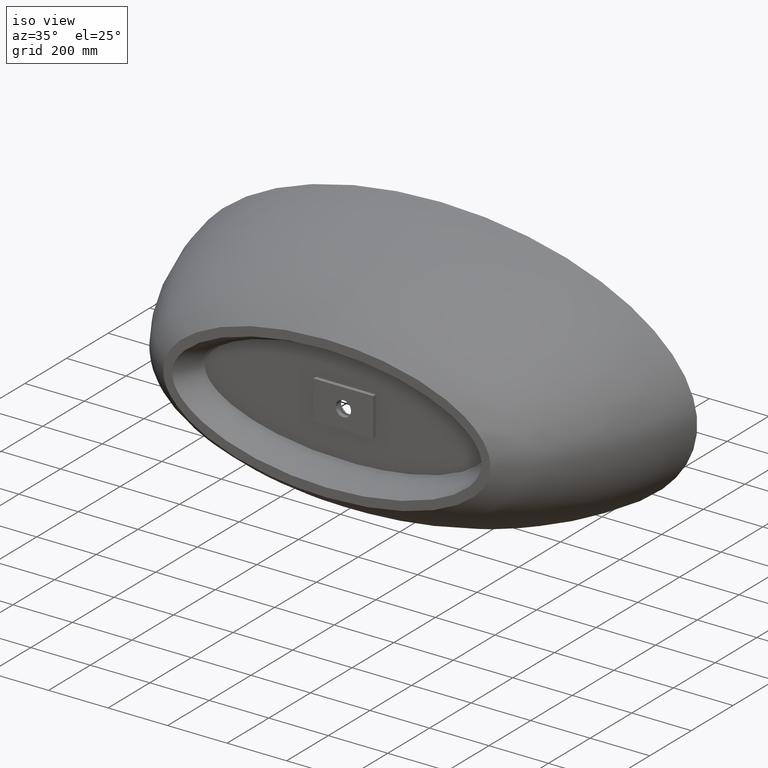
[diagram: clean part render]
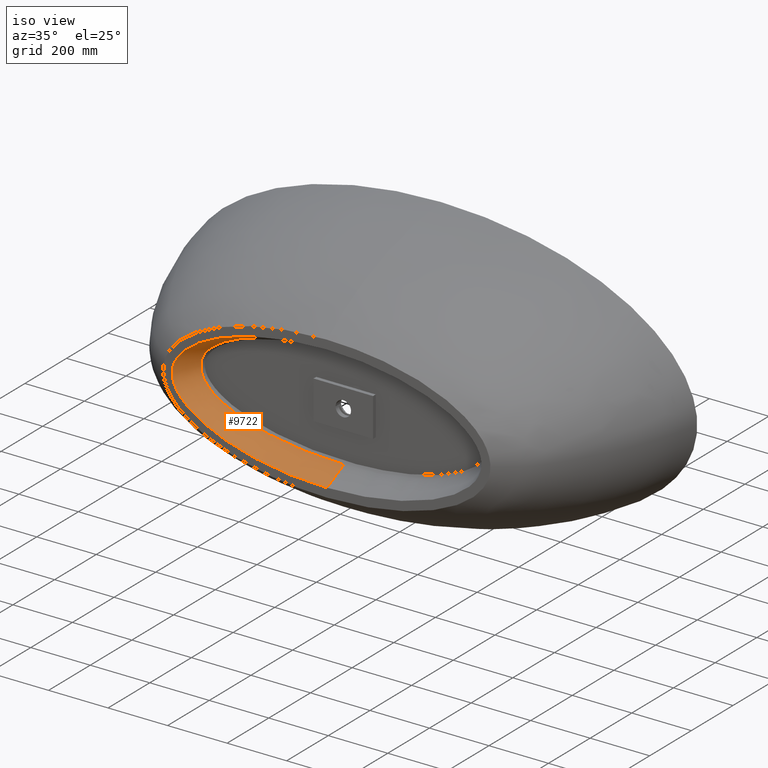
[diagram: same view with one face highlighted and labeled with its STEP entity id]
A machine part, iso view. The second image highlights one B-rep face of the part: STEP entity #9722.
In plain terms, the highlighted face is a freeform B-spline surface patch.
Its self-contained STEP definition (entity closure, byte-faithful):
#24 = CARTESIAN_POINT ( 'NONE',  ( -123.6754900008494644, -550.0000000000021600, -204.1601253492840726 ) ) ;
#38 = CARTESIAN_POINT ( 'NONE',  ( -122.8561351456180546, -525.0000000000006821, 192.7223998670199876 ) ) ;
#55 = CARTESIAN_POINT ( 'NONE',  ( 454.5935799106576383, -458.3333333333312112, 50.50370857153350812 ) ) ;
#95 = CARTESIAN_POINT ( 'NONE',  ( -469.9094558180062222, -550.0000000000036380, -87.21953454294505548 ) ) ;
#102 = CARTESIAN_POINT ( 'NONE',  ( -71.95552711009126767, -467.3828480787103672, 169.6634890951642376 ) ) ;
#111 = CARTESIAN_POINT ( 'NONE',  ( -506.3300705279263525, -524.9999999999988631, -17.45412983368013116 ) ) ;
#126 = CARTESIAN_POINT ( 'NONE',  ( -4.882537312501230353, -474.9999999999998863, 175.0269277128233227 ) ) ;
#162 = CARTESIAN_POINT ( 'NONE',  ( 335.9351409535395874, -549.9999999999972715, -158.7141456705421376 ) ) ;
#178 = CARTESIAN_POINT ( 'NONE',  ( -122.8330484642598890, -525.0000000000013642, -192.7246501139622410 ) ) ;
#194 = CARTESIAN_POINT ( 'NONE',  ( 313.9022046835983133, -458.3333333333323480, 126.3825153932856580 ) ) ;
#214 = B_SPLINE_CURVE_WITH_KNOTS ( 'NONE', 3,
 ( #8985, #1532, #3818, #6907, #10143, #8191, #7052, #11278, #11422, #5975, #1602, #10358, #6980, #7906, #12281, #13356, #12570, #3675, #8047, #527, #12425, #6837, #10287, #2744, #4905, #7124, #11490, #3534, #1672, #7977, #12352, #13427, #9060, #11209, #2527, #1388, #5763, #306, #4688, #3604, #7404, #2956, #1950, #9420, #4980, #9633, #14000, #4177, #9492, #5050, #8548, #13717, #12922, #7193, #665, #13788, #8335, #13859, #3100, #733, #4038, #2883, #10563, #4185, #1960, #7205, #9572, #8557, #5062, #8273, #7273, #13940, #4117, #6058, #8420, #2823, #13729, #3109, #11502, #12863, #3900, #6196, #1750, #8347, #12726, #11641, #3034, #744, #7414, #10573, #11786, #1887, #9358, #6341, #5132, #9503, #10714, #607, #12654, #13295, #4556, #13155, #7637, #1189, #12013, #12220 ),
 .UNSPECIFIED., .F., .F.,
 ( 4, 2, 2, 2, 2, 2, 2, 2, 2, 2, 2, 2, 2, 2, 2, 2, 2, 2, 2, 2, 2, 2, 2, 2, 2, 2, 2, 2, 2, 2, 2, 2, 2, 2, 2, 2, 2, 2, 2, 2, 2, 2, 2, 2, 2, 2, 2, 2, 2, 2, 2, 2, 4 ),
 ( 1.083616253836614085, 1.137896855654092931, 1.192177457471571778, 1.246458059289050624, 1.300738661106529248, 1.355019262924008094, 1.382159563832747295, 1.409299864741486719, 1.422870015195856430, 1.429655090423041175, 1.436440165650226142, 1.463580466558965121, 1.490720767467704100, 1.504290917922073589, 1.517861068376443079, 1.524646143603628046, 1.531431218830812790, 1.545001369285182502, 1.558571519739551992, 1.565356594966736958, 1.572141670193921925, 1.585711820648291193, 1.592496895875476159, 1.599281971102660904, 1.606067046329845649, 1.612852121557030616, 1.616244659170622988, 1.617940927977419285, 1.619637196784215583, 1.626422272011400327, 1.633207347238585072, 1.636599884852177667, 1.639992422465770039, 1.646777497692955006, 1.653562572920139750, 1.660347648147324495, 1.663740185760917090, 1.667132723374509462, 1.680702873828878952, 1.694273024283248219, 1.697665561896840813, 1.701058099510432964, 1.707843174737618153, 1.734983475646357576, 1.748553626100727509, 1.755338701327912254, 1.762123776555096999, 1.789264077463836866, 1.816404378372576733, 1.843544679281316601, 1.870684980190056468, 1.897825281098796113, 1.952105882916275847 ),
 .UNSPECIFIED. ) ;
#231 = CARTESIAN_POINT ( 'NONE',  ( -0.003148599294392492344, -467.3214173590451992, -171.4465987461337022 ) ) ;
#247 = CARTESIAN_POINT ( 'NONE',  ( 493.3444691351754727, -500.0000000000024443, 21.84344304771342138 ) ) ;
#266 = CARTESIAN_POINT ( 'NONE',  ( 5.965689138564333582, -458.3333333333335986, 167.2551309202380878 ) ) ;
#306 = CARTESIAN_POINT ( 'NONE',  ( -452.5840212294118601, -468.7592156389234219, -58.46529210860912684 ) ) ;
#324 = CARTESIAN_POINT ( 'NONE',  ( -494.5261100994755452, -541.6666666666648098, 56.74152032439855731 ) ) ;
#346 = CARTESIAN_POINT ( 'NONE',  ( -454.6361574225831532, -474.9999999999988631, -60.63562333867633924 ) ) ;
#363 = CARTESIAN_POINT ( 'NONE',  ( -467.7574374519767844, -450.0000000000000568, 25.24045618587533824 ) ) ;
#399 = CARTESIAN_POINT ( 'NONE',  ( 123.2102832201385780, -524.9999999999986358, -192.6880583369600402 ) ) ;
#417 = CARTESIAN_POINT ( 'NONE',  ( -420.8430910411079253, -475.0000000000009663, -86.33623883746433592 ) ) ;
#433 = CARTESIAN_POINT ( 'NONE',  ( 0.5332764720002736158, -450.0000000000002274, 163.3692348960364882 ) ) ;
#471 = CARTESIAN_POINT ( 'NONE',  ( -4.967803532043870263, -541.6666666666667425, 206.1141055520141379 ) ) ;
#488 = CARTESIAN_POINT ( 'NONE',  ( -12.25491471337527472, -475.0000000000001137, -175.3636290299959626 ) ) ;
#504 = CARTESIAN_POINT ( 'NONE',  ( 397.6047845192697423, -449.9999999999996589, -88.94480633501328271 ) ) ;
#527 = CARTESIAN_POINT ( 'NONE',  ( -340.5450020567193974, -468.8009264161114515, -121.6758354010747922 ) ) ;
#544 = CARTESIAN_POINT ( 'NONE',  ( 482.0094772962547722, -525.0000000000025011, -61.00900414678482520 ) ) ;
#563 = CARTESIAN_POINT ( 'NONE',  ( 272.4480742803546605, -474.9999999999984084, 145.3001094564778271 ) ) ;
#580 = CARTESIAN_POINT ( 'NONE',  ( -225.0856999403210068, -449.9999999999989768, -144.3353527966432068 ) ) ;
#607 = CARTESIAN_POINT ( 'NONE',  ( -337.9988464532643775, -468.7854385134002086, 122.6567686980322804 ) ) ;
#613 = CARTESIAN_POINT ( 'NONE',  ( -442.0255736134720337, -541.6666666666684478, -103.6838915429262755 ) ) ;
#629 = CARTESIAN_POINT ( 'NONE',  ( 121.4653252124941787, -474.9999999999992042, -169.8229351359439931 ) ) ;
#645 = CARTESIAN_POINT ( 'NONE',  ( -167.4452857243489916, -450.0000000000013074, 153.3025583154073672 ) ) ;
#654 = B_SPLINE_SURFACE_WITH_KNOTS ( 'NONE', 3, 3, ( 
 ( #433, #8097, #6959, #3940, #11610, #645, #11331, #1788, #3869, #7174, #6167, #4960, #10268, #4884, #13622, #8311, #11472, #13478, #363, #6025, #12477, #8171, #12550, #2651, #13549, #2725, #7104, #4741, #3655, #1512, #10409, #13769, #8243, #3798, #11539, #12694, #8028, #580, #7033, #11402, #1583, #5955, #13697, #10339, #9111, #1653, #12404, #12624, #4814, #9328, #1721, #9183, #504, #6099, #10477, #5029, #9399, #10543, #5243, #14046, #1998, #9686, #4227, #11752, #8600, #13040, #10753, #3218, #712, #7455, #13908, #1926, #5309, #6380, #7526, #9612, #8389, #8458, #5380, #10612, #4085, #4299, #6234, #8670 ),
 ( #7383, #12832, #3149, #4014, #6310, #7593, #11899, #926, #9760, #12971, #2066, #9541, #14118, #995, #785, #6450, #11967, #3004, #7312, #10683, #10823, #2135, #5104, #3076, #1856, #12764, #9471, #13839, #2934, #11682, #5173, #857, #13979, #4156, #8528, #12902, #11826, #6519, #6731, #7802, #10889, #5726, #7865, #7663, #8948, #8739, #9020, #13107, #5659, #4368, #9899, #10038, #4438, #12318, #12245, #3283, #6801, #1073, #10960, #1141, #2418, #9970, #4507, #5452, #13391, #4648, #8878, #6593, #55, #12038, #10109, #3569, #11171, #2208, #7940, #194, #13318, #9827, #11100, #5520, #11031, #1213, #266, #3425 ),
 ( #8811, #126, #13252, #13181, #3355, #12174, #2347, #14187, #7730, #12105, #1282, #2278, #3494, #6661, #5589, #4579, #1353, #2709, #3782, #6872, #1704, #3853, #3639, #4944, #4724, #5013, #9095, #1637, #346, #5868, #6010, #417, #8295, #8227, #13461, #2778, #11243, #6942, #11314, #12606, #5939, #488, #1423, #9383, #629, #4867, #2561, #10251, #8012, #6082, #13753, #7158, #12388, #3923, #10394, #9312, #2491, #7087, #1496, #7017, #11386, #10461, #13606, #5797, #10179, #8155, #4797, #10323, #9239, #9167, #13533, #12534, #11456, #3709, #8081, #12460, #563, #2635, #13681, #1567, #11523, #10804, #6152, #12884 ),
 ( #11664, #11807, #10595, #6432, #6291, #12678, #10735, #5087, #5226, #3055, #2846, #8440, #7436, #10528, #1980, #697, #7229, #7365, #9454, #9524, #13890, #765, #5292, #13822, #12815, #976, #14028, #6362, #7505, #908, #9666, #1839, #2046, #3130, #8373, #4207, #5359, #6217, #3996, #2987, #8580, #12953, #11594, #9595, #12748, #2918, #9741, #14100, #4281, #7296, #5156, #11880, #1772, #4068, #13961, #11734, #1908, #4139, #10665, #839, #8511, #10943, #7644, #2263, #1197, #247, #11950, #9809, #4492, #7849, #2330, #7716, #5643, #6785, #2117, #8863, #6575, #1124, #12020, #2190, #7784, #5503, #2401, #6645 ),
 ( #6501, #9881, #3476, #8721, #38, #11156, #4349, #1335, #12090, #4421, #13237, #8651, #10021, #1054, #5434, #14169, #7575, #11016, #11082, #3337, #5574, #9953, #6715, #111, #13022, #10871, #4563, #3201, #5710, #8792, #13302, #12157, #3410, #3265, #10092, #13089, #13164, #12227, #1266, #178, #8930, #5922, #9002, #12300, #399, #4780, #12443, #11439, #8065, #7069, #11296, #1550, #13445, #9222, #12370, #13517, #12517, #544, #10443, #10305, #11227, #2545, #2617, #7995, #3622, #1406, #6855, #1478, #9294, #4631, #10375, #5851, #7140, #13586, #6998, #3764, #10235, #13372, #5781, #1619, #9150, #6925, #4923, #3692 ),
 ( #3552, #471, #12588, #11368, #4707, #3835, #8138, #8210, #11508, #13663, #10162, #1688, #2691, #5993, #6064, #2761, #324, #4850, #7923, #2475, #9078, #13736, #6419, #6275, #3977, #8426, #12800, #2900, #13805, #2973, #7351, #613, #3907, #1756, #10651, #14015, #8498, #13875, #11793, #12939, #8279, #825, #12732, #7279, #8354, #11648, #13947, #1823, #8564, #11719, #4996, #12871, #7211, #1894, #5212, #9366, #10580, #9581, #12662, #4124, #2830, #11578, #9509, #6135, #6202, #750, #5139, #7421, #10512, #4053, #3117, #1967, #3041, #9652, #6349, #10722, #895, #4193, #5279, #681, #7492, #11867, #2033, #5069 ),
 ( #9437, #3324, #2105, #13009, #13286, #3460, #12211, #11938, #3188, #3393, #13222, #7767, #6561, #14156, #2177, #10791, #11001, #12076, #962, #10006, #12142, #6489, #2314, #7563, #7834, #10858, #9939, #8638, #4336, #95, #8709, #2385, #6699, #1040, #11068, #5346, #5421, #9797, #1250, #24, #8779, #9726, #14085, #8914, #13147, #13078, #3252, #7630, #5628, #162, #4546, #10930, #12006, #1110, #4268, #1182, #2247, #5490, #9867, #4407, #7702, #6630, #5559, #4478, #8849, #5904, #4615, #10142, #10286, #4687, #12569, #12498, #3533, #7051, #1318, #11208, #1387, #8119, #10216, #4760, #11140, #9275, #4904, #9131 ) ),
 .UNSPECIFIED., .F., .T., .F.,
 ( 4, 1, 1, 1, 4 ),
 ( 4, 1, 1, 1, 1, 1, 1, 1, 1, 1, 1, 1, 1, 1, 1, 1, 1, 1, 1, 1, 1, 1, 1, 1, 1, 1, 1, 1, 1, 1, 1, 1, 1, 1, 1, 1, 1, 1, 1, 1, 1, 1, 1, 1, 1, 1, 1, 1, 1, 1, 1, 1, 1, 1, 1, 1, 1, 1, 1, 1, 1, 1, 1, 1, 1, 1, 1, 1, 1, 1, 1, 1, 1, 1, 1, 1, 1, 1, 1, 1, 1, 4 ),
 ( 0.7049887907369637441, 0.7787415930527228358, 0.8524943953684818165, 0.9262471976842409083, 1.000000000000000000 ),
 ( 0.000000000000000000, 0.006250000000000088818, 0.03125000000000000000, 0.04687500000000000000, 0.07812500000000000000, 0.09375000000000000000, 0.1250000000000000000, 0.1406250000000000000, 0.1562500000000000000, 0.1718750000000000000, 0.1796875000000000000, 0.1875000000000000000, 0.1953125000000000000, 0.2109375000000000000, 0.2187500000000000000, 0.2226562500000000000, 0.2304687500000000000, 0.2343750000000000000, 0.2421875000000000000, 0.2460937500000000000, 0.2500000000005851430, 0.2539062500000000000, 0.2578125000000000000, 0.2617187500000000000, 0.2656250000000000000, 0.2695312500000000000, 0.2773437500000000000, 0.2812500000000000000, 0.2968750000000000000, 0.3007812500000000000, 0.3046875000000000000, 0.3125000000000000000, 0.3281250000000000000, 0.3437500000000000000, 0.3593750000000000000, 0.3750000000000000000, 0.4062500000000000000, 0.4218750000000000000, 0.4531250000000000000, 0.4687500000000000000, 0.4999999999982000509, 0.5156250000000000000, 0.5312500000000000000, 0.5468750000000000000, 0.5781250000000000000, 0.5937500000000000000, 0.6093750000000000000, 0.6250000000000000000, 0.6484375000000000000, 0.6562500000000000000, 0.6718750000000000000, 0.6875000000000000000, 0.6953125000000000000, 0.7031250000000000000, 0.7070312500000000000, 0.7148437500000000000, 0.7187500000000000000, 0.7265625000000000000, 0.7304687500000000000, 0.7343750000000000000, 0.7421875000000000000, 0.7500000000000101030, 0.7519531250000000000, 0.7539062500000000000, 0.7617187500000000000, 0.7656250000000000000, 0.7734375000000000000, 0.7812500000000000000, 0.7851562500000000000, 0.7968750000000000000, 0.8125000000000000000, 0.8203125000000000000, 0.8281250000000000000, 0.8437500000000000000, 0.8593750000000000000, 0.8750000000000000000, 0.9062500000000000000, 0.9218750000000000000, 0.9531250000000000000, 0.9687500000000000000, 0.9937500000000000222, 1.000000000000000000 ),
 .UNSPECIFIED. ) ;
#665 = CARTESIAN_POINT ( 'NONE',  ( -480.6523914222681810, -467.4020528918748596, -9.790328796972397996 ) ) ;
#681 = CARTESIAN_POINT ( 'NONE',  ( 123.4240136812713473, -541.6666666666649235, 200.3445654248738208 ) ) ;
#696 = CARTESIAN_POINT ( 'NONE',  ( -519.5850296290756205, -549.9999999999992042, 9.549107308864039467 ) ) ;
#697 = CARTESIAN_POINT ( 'NONE',  ( -467.9146042479652579, -500.0000000000015348, 61.22282227989558834 ) ) ;
#712 = CARTESIAN_POINT ( 'NONE',  ( 451.2239201451925510, -449.9999999999980673, 49.12460364254516065 ) ) ;
#733 = CARTESIAN_POINT ( 'NONE',  ( -481.4653567054057248, -467.3194619530711975, 1.622492256207350048 ) ) ;
#744 = CARTESIAN_POINT ( 'NONE',  ( -415.9116427697339304, -469.1154009670157166, 86.65776487823910657 ) ) ;
#750 = CARTESIAN_POINT ( 'NONE',  ( 512.4113798455022106, -541.6666666666690162, 24.51032289977831624 ) ) ;
#764 = CARTESIAN_POINT ( 'NONE',  ( -483.7870770893066492, -549.9999999999989768, -74.67508547279993536 ) ) ;
#765 = CARTESIAN_POINT ( 'NONE',  ( -496.8630882809812306, -499.9999999999983515, -0.03519785223473289454 ) ) ;
#785 = CARTESIAN_POINT ( 'NONE',  ( -438.6839488676095016, -458.3333333333314954, 65.96932489895752383 ) ) ;
#825 = CARTESIAN_POINT ( 'NONE',  ( -12.48038170186020324, -541.6666666666674246, -206.4871461162411777 ) ) ;
#839 = CARTESIAN_POINT ( 'NONE',  ( 485.0287632670011249, -500.0000000000011369, -39.02425274939777466 ) ) ;
#857 = CARTESIAN_POINT ( 'NONE',  ( -415.5474703980162872, -458.3333333333345649, -81.99932566109876575 ) ) ;
#895 = CARTESIAN_POINT ( 'NONE',  ( 280.2360556260232443, -541.6666666666646961, 172.5166052423504084 ) ) ;
#907 = CARTESIAN_POINT ( 'NONE',  ( -517.8656511224545511, -549.9999999999996589, -18.64396103233140067 ) ) ;
#908 = CARTESIAN_POINT ( 'NONE',  ( -451.8034759961830673, -500.0000000000031264, -76.36972127514830788 ) ) ;
#926 = CARTESIAN_POINT ( 'NONE',  ( -270.8500107637440237, -458.3333333333325186, 138.4114697392815856 ) ) ;
#962 = CARTESIAN_POINT ( 'NONE',  ( -512.7262407189728037, -549.9999999999998863, 33.87751203764115360 ) ) ;
#976 = CARTESIAN_POINT ( 'NONE',  ( -488.9644241028191800, -499.9999999999997726, -31.85781474002228464 ) ) ;
#995 = CARTESIAN_POINT ( 'NONE',  ( -422.1696859866499949, -458.3333333333308133, 78.03343225411494188 ) ) ;
#1040 = CARTESIAN_POINT ( 'NONE',  ( -398.8387722680801630, -549.9999999999990905, -132.5701618966881767 ) ) ;
#1054 = CARTESIAN_POINT ( 'NONE',  ( -444.1957043517195984, -524.9999999999959073, 94.62832591861626952 ) ) ;
#1073 = CARTESIAN_POINT ( 'NONE',  ( 454.9548190299271937, -458.3333333333352471, -50.08818061622491769 ) ) ;
#1110 = CARTESIAN_POINT ( 'NONE',  ( 447.4784846781843157, -549.9999999999995453, -104.0388958137139781 ) ) ;
#1115 = CARTESIAN_POINT ( 'NONE',  ( -126.1312243615951587, -467.5239045203720707, 165.6703550166573393 ) ) ;
#1124 = CARTESIAN_POINT ( 'NONE',  ( 229.0018114751654821, -500.0000000000030127, 165.8314451429493204 ) ) ;
#1141 = CARTESIAN_POINT ( 'NONE',  ( 466.8235116212752587, -458.3333333333334849, -34.30074863232930227 ) ) ;
#1182 = CARTESIAN_POINT ( 'NONE',  ( 472.2276801212634609, -549.9999999999982947, -84.89799376200041081 ) ) ;
#1189 = CARTESIAN_POINT ( 'NONE',  ( -251.4769113962974529, -468.1645820150845907, 146.7665384079869000 ) ) ;
#1197 = CARTESIAN_POINT ( 'NONE',  ( 495.7793071507927607, -500.0000000000028990, 12.51491664359415168 ) ) ;
#1213 = CARTESIAN_POINT ( 'NONE',  ( 35.79413483138259977, -458.3333333333336554, 166.9937947781511696 ) ) ;
#1250 = CARTESIAN_POINT ( 'NONE',  ( -172.6843499985562858, -550.0000000000011369, -198.0555737253382631 ) ) ;
#1265 = CARTESIAN_POINT ( 'NONE',  ( -172.6843499985562858, -550.0000000000011369, -198.0555737253382631 ) ) ;
#1266 = CARTESIAN_POINT ( 'NONE',  ( -171.3769435477937861, -525.0000000000004547, -186.8671548075758437 ) ) ;
#1282 = CARTESIAN_POINT ( 'NONE',  ( -374.9976067603500383, -475.0000000000008527, 110.8161223058505840 ) ) ;
#1318 = CARTESIAN_POINT ( 'NONE',  ( 364.0616454927691166, -550.0000000000018190, 148.0571270329452034 ) ) ;
#1335 = CARTESIAN_POINT ( 'NONE',  ( -278.7320551570267639, -524.9999999999985221, 165.6051822461836025 ) ) ;
#1353 = CARTESIAN_POINT ( 'NONE',  ( -466.6711070181572723, -474.9999999999980105, 46.98212579727611882 ) ) ;
#1387 = CARTESIAN_POINT ( 'NONE',  ( 281.2095532942316822, -549.9999999999978400, 175.9186672155845770 ) ) ;
#1388 = CARTESIAN_POINT ( 'NONE',  ( -444.2526101124670390, -468.9157208908022767, -66.19496893899847123 ) ) ;
#1406 = CARTESIAN_POINT ( 'NONE',  ( 504.7846155613710835, -525.0000000000015916, 23.44357095895239240 ) ) ;
#1423 = CARTESIAN_POINT ( 'NONE',  ( 36.66119725384926653, -474.9999999999989768, -174.6896890031004261 ) ) ;
#1478 = CARTESIAN_POINT ( 'NONE',  ( 491.0950055478811009, -524.9999999999974989, 49.87694573707826606 ) ) ;
#1496 = CARTESIAN_POINT ( 'NONE',  ( 468.4171006712332428, -475.0000000000007390, -44.75169900889075336 ) ) ;
#1512 = CARTESIAN_POINT ( 'NONE',  ( -433.6974961743598556, -450.0000000000024443, -65.51990800735167397 ) ) ;
#1532 = CARTESIAN_POINT ( 'NONE',  ( -18.07345163480027850, -467.3213452411833941, -171.4473336064016848 ) ) ;
#1550 = CARTESIAN_POINT ( 'NONE',  ( 392.8824365086259718, -524.9999999999994316, -124.4718143270444983 ) ) ;
#1567 = CARTESIAN_POINT ( 'NONE',  ( 121.1715750031391536, -474.9999999999983515, 169.8507126123164426 ) ) ;
#1583 = CARTESIAN_POINT ( 'NONE',  ( -60.51209179544112970, -449.9999999999984084, -162.4047827839201830 ) ) ;
#1602 = CARTESIAN_POINT ( 'NONE',  ( -249.4248128524395156, -468.1504784931290146, -147.2020009855285423 ) ) ;
#1619 = CARTESIAN_POINT ( 'NONE',  ( 122.8609040117382420, -524.9999999999977263, 192.7211022217345828 ) ) ;
#1637 = CARTESIAN_POINT ( 'NONE',  ( -466.6382043974368798, -475.0000000000001137, -47.02217515900344580 ) ) ;
#1653 = CARTESIAN_POINT ( 'NONE',  ( 167.7898496224057965, -450.0000000000017053, -153.2522126462360461 ) ) ;
#1672 = CARTESIAN_POINT ( 'NONE',  ( -414.6497497629217150, -469.1159138789611234, -87.42670488374292859 ) ) ;
#1688 = CARTESIAN_POINT ( 'NONE',  ( -412.7715391764813830, -541.6666666666656056, 121.2873967781300308 ) ) ;
#1704 = CARTESIAN_POINT ( 'NONE',  ( -484.6843252177005184, -474.9999999999992610, 7.714187584802132847 ) ) ;
#1721 = CARTESIAN_POINT ( 'NONE',  ( 349.5885317157486156, -450.0000000000014779, -110.5057381484052001 ) ) ;
#1750 = CARTESIAN_POINT ( 'NONE',  ( -447.7541105871190439, -468.8557773743261237, 63.02603425294041273 ) ) ;
#1756 = CARTESIAN_POINT ( 'NONE',  ( -396.7824585562478319, -541.6666666666659467, -129.9054127601115169 ) ) ;
#1772 = CARTESIAN_POINT ( 'NONE',  ( 411.9968194659930987, -500.0000000000004547, -103.2895577258498605 ) ) ;
#1788 = CARTESIAN_POINT ( 'NONE',  ( -269.8647552145836244, -449.9999999999993179, 135.0122556759187944 ) ) ;
#1823 = CARTESIAN_POINT ( 'NONE',  ( 257.2562053587951709, -541.6666666666715173, -177.8873936661086077 ) ) ;
#1838 = CARTESIAN_POINT ( 'NONE',  ( -511.2937739351939399, -549.9999999999995453, -36.50208483054849040 ) ) ;
#1839 = CARTESIAN_POINT ( 'NONE',  ( -428.7865220057440752, -500.0000000000014211, -92.84160860201244247 ) ) ;
#1856 = CARTESIAN_POINT ( 'NONE',  ( -473.3308548289550686, -458.3333333333340533, -21.27561957000980541 ) ) ;
#1887 = CARTESIAN_POINT ( 'NONE',  ( -400.1350036452212748, -469.1097417146932003, 95.69899241936518308 ) ) ;
#1894 = CARTESIAN_POINT ( 'NONE',  ( 444.7903378574413864, -541.6666666666660603, -101.9054051123571583 ) ) ;
#1907 = CARTESIAN_POINT ( 'NONE',  ( -29.86239837037285838, -549.9999999999995453, 209.8496034169386917 ) ) ;
#1908 = CARTESIAN_POINT ( 'NONE',  ( 462.2053029060990639, -499.9999999999986926, -66.89324996732717921 ) ) ;
#1926 = CARTESIAN_POINT ( 'NONE',  ( 406.3879197038848474, -450.0000000000002274, 84.02569611617953171 ) ) ;
#1950 = CARTESIAN_POINT ( 'NONE',  ( -466.1239416450769113, -468.3492959961216116, -42.95452941600439800 ) ) ;
#1960 = CARTESIAN_POINT ( 'NONE',  ( -480.2904139369654786, -467.4379323771756845, 11.84833516663051611 ) ) ;
#1967 = CARTESIAN_POINT ( 'NONE',  ( 434.2545991839776889, -541.6666666666669698, 109.0315649308239898 ) ) ;
#1979 = CARTESIAN_POINT ( 'NONE',  ( -329.7423837641039199, -550.0000000000013642, -160.8065528081098137 ) ) ;
#1980 = CARTESIAN_POINT ( 'NONE',  ( -453.9411688877575557, -499.9999999999980105, 74.84980235753168643 ) ) ;
#1998 = CARTESIAN_POINT ( 'NONE',  ( 467.8122091362647552, -449.9999999999990905, -25.11404376360612645 ) ) ;
#2033 = CARTESIAN_POINT ( 'NONE',  ( 6.451426282475619445, -541.6666666666671972, 206.1141024331532492 ) ) ;
#2038 = CARTESIAN_POINT ( 'NONE',  ( -10.77968392090942373, -467.3228049188249429, 171.4056285663268966 ) ) ;
#2046 = CARTESIAN_POINT ( 'NONE',  ( -411.8378552553626264, -499.9999999999981242, -103.3824755415128323 ) ) ;
#2066 = CARTESIAN_POINT ( 'NONE',  ( -371.0191095873656764, -458.3333333333342807, 105.3913499036497115 ) ) ;
#2105 = CARTESIAN_POINT ( 'NONE',  ( -29.86239837037285838, -549.9999999999995453, 209.8496034169386917 ) ) ;
#2117 = CARTESIAN_POINT ( 'NONE',  ( 354.0126675457673855, -500.0000000000016485, 130.4212052497172749 ) ) ;
#2135 = CARTESIAN_POINT ( 'NONE',  ( -477.4141739986699235, -458.3333333333318365, -0.03012261688637923526 ) ) ;
#2177 = CARTESIAN_POINT ( 'NONE',  ( -472.2498329119354707, -549.9999999999976126, 85.50637530782080376 ) ) ;
#2190 = CARTESIAN_POINT ( 'NONE',  ( 122.0162395074386978, -499.9999999999986926, 181.2859074170251574 ) ) ;
#2208 = CARTESIAN_POINT ( 'NONE',  ( 370.8526962691965991, -458.3333333333346218, 105.4733201914273764 ) ) ;
#2247 = CARTESIAN_POINT ( 'NONE',  ( 481.4281569729997727, -549.9999999999977263, -76.45597951671742010 ) ) ;
#2263 = CARTESIAN_POINT ( 'NONE',  ( 496.5930083570258944, -499.9999999999996589, 4.191719399499540089 ) ) ;
#2278 = CARTESIAN_POINT ( 'NONE',  ( -394.7453654235261524, -474.9999999999989768, 101.2482820576083071 ) ) ;
#2314 = CARTESIAN_POINT ( 'NONE',  ( -519.5943968856109905, -549.9999999999990905, -9.439067291093101275 ) ) ;
#2330 = CARTESIAN_POINT ( 'NONE',  ( 442.7837630709016139, -499.9999999999997726, 83.74459441819530525 ) ) ;
#2347 = CARTESIAN_POINT ( 'NONE',  ( -227.1353274374386046, -474.9999999999993179, 155.0656709009592191 ) ) ;
#2380 = EDGE_CURVE ( 'NONE', #11493, #12397, #7239, .T. ) ;
#2385 = CARTESIAN_POINT ( 'NONE',  ( -444.6733839350175685, -550.0000000000014779, -105.8523481311090535 ) ) ;
#2401 = CARTESIAN_POINT ( 'NONE',  ( 6.208557710519944095, -500.0000000000007958, 186.6846166766953843 ) ) ;
#2404 = CARTESIAN_POINT ( 'NONE',  ( -0.003148599294392492344, -467.3214173590451992, -171.4465987461337022 ) ) ;
#2418 = CARTESIAN_POINT ( 'NONE',  ( 471.5615193037216955, -458.3333333333320638, -25.82939017857603758 ) ) ;
#2430 = EDGE_CURVE ( 'NONE', #11493, #14142, #214, .T. ) ;
#2457 = CARTESIAN_POINT ( 'NONE',  ( -0.003313865095902813508, -480.7738057863483618, -177.7195714580759898 ) ) ;
#2475 = CARTESIAN_POINT ( 'NONE',  ( -513.4043582166178794, -541.6666666666679930, 21.42269207148311239 ) ) ;
#2491 = CARTESIAN_POINT ( 'NONE',  ( 452.5938758726482547, -474.9999999999979536, -62.11188519263221508 ) ) ;
#2527 = CARTESIAN_POINT ( 'NONE',  ( -437.2175529691400584, -469.0030907593925349, -71.94471206144807240 ) ) ;
#2545 = CARTESIAN_POINT ( 'NONE',  ( 506.8356976807073693, -524.9999999999989768, -17.54160118034946692 ) ) ;
#2561 = CARTESIAN_POINT ( 'NONE',  ( 215.8688516361406755, -474.9999999999975557, -156.8702175024385213 ) ) ;
#2617 = CARTESIAN_POINT ( 'NONE',  ( 508.5375050851357059, -525.0000000000005684, -4.510563607492191096 ) ) ;
#2635 = CARTESIAN_POINT ( 'NONE',  ( 226.9180445740900893, -475.0000000000021600, 155.1078032840842980 ) ) ;
#2651 = CARTESIAN_POINT ( 'NONE',  ( -471.7233287443416998, -449.9999999999998295, -13.88463623772624089 ) ) ;
#2691 = CARTESIAN_POINT ( 'NONE',  ( -428.7985043723112426, -541.6666666666687888, 112.1489707303257433 ) ) ;
#2709 = CARTESIAN_POINT ( 'NONE',  ( -472.7600518797291329, -474.9999999999993747, 38.59518978978037040 ) ) ;
#2725 = CARTESIAN_POINT ( 'NONE',  ( -466.6350742704444201, -449.9999999999995453, -27.21354464949614638 ) ) ;
#2744 = CARTESIAN_POINT ( 'NONE',  ( -378.5218143452628397, -469.0348040222109489, -106.4741630851253547 ) ) ;
#2761 = CARTESIAN_POINT ( 'NONE',  ( -484.4442422333285094, -541.6666666666684478, 68.55117954807765557 ) ) ;
#2778 = CARTESIAN_POINT ( 'NONE',  ( -317.4140823900374926, -475.0000000000007390, -132.4267037227940875 ) ) ;
#2823 = CARTESIAN_POINT ( 'NONE',  ( -466.8607886194422463, -468.3175876879878956, 41.93317296766033309 ) ) ;
#2830 = CARTESIAN_POINT ( 'NONE',  ( 509.0546209782897904, -541.6666666666654919, -32.98285432827522357 ) ) ;
#2846 = CARTESIAN_POINT ( 'NONE',  ( -380.9653525198258421, -500.0000000000011937, 118.9532809091515304 ) ) ;
#2870 = EDGE_CURVE ( 'NONE', #14142, #12856, #6087, .T. ) ;
#2883 = CARTESIAN_POINT ( 'NONE',  ( -481.0109944499109815, -467.3658044156718461, 7.307039164445832569 ) ) ;
#2900 = CARTESIAN_POINT ( 'NONE',  ( -494.4848970472860969, -541.6666666666674246, -56.79168408233972087 ) ) ;
#2917 = CARTESIAN_POINT ( 'NONE',  ( -520.2017854197547422, -549.9999999999977263, -0.04128813465277873102 ) ) ;
#2918 = CARTESIAN_POINT ( 'NONE',  ( 170.4747811959051660, -500.0000000000026716, -175.6186547475033990 ) ) ;
#2934 = CARTESIAN_POINT ( 'NONE',  ( -448.1581752744215237, -458.3333333333324617, -57.51574286442659201 ) ) ;
#2956 = CARTESIAN_POINT ( 'NONE',  ( -463.3483630112508536, -468.4579442747673852, -46.59522981334330893 ) ) ;
#2973 = CARTESIAN_POINT ( 'NONE',  ( -466.8917925143692855, -541.6666666666703804, -85.41123233164560702 ) ) ;
#2987 = CARTESIAN_POINT ( 'NONE',  ( -121.9906069276707115, -500.0000000000021032, -181.2891748786400967 ) ) ;
#3004 = CARTESIAN_POINT ( 'NONE',  ( -465.5388322429711252, -458.3333333333328596, 36.58021808571179889 ) ) ;
#3034 = CARTESIAN_POINT ( 'NONE',  ( -427.3625810881117104, -469.0852166512999588, 79.32584641861600971 ) ) ;
#3041 = CARTESIAN_POINT ( 'NONE',  ( 412.7389657394562619, -541.6666666666661740, 121.3089345292389538 ) ) ;
#3054 = CARTESIAN_POINT ( 'NONE',  ( -233.4483632021364770, -549.9999999999992042, 187.2246256979250916 ) ) ;
#3055 = CARTESIAN_POINT ( 'NONE',  ( -354.4113738221506651, -499.9999999999988063, 130.2525153913164502 ) ) ;
#3076 = CARTESIAN_POINT ( 'NONE',  ( -475.5685222758511941, -458.3333333333332007, -14.28124663727667354 ) ) ;
#3100 = CARTESIAN_POINT ( 'NONE',  ( -481.4174868480480995, -467.3243516341108261, -2.936475395723118886 ) ) ;
#3109 = CARTESIAN_POINT ( 'NONE',  ( -458.3087490549276026, -468.6219918197990637, 52.55843370740056031 ) ) ;
#3117 = CARTESIAN_POINT ( 'NONE',  ( 457.0813432582457949, -541.6666666666660603, 93.61645943096824851 ) ) ;
#3130 = CARTESIAN_POINT ( 'NONE',  ( -386.5008899970857215, -499.9999999999994316, -116.5816670772283032 ) ) ;
#3149 = CARTESIAN_POINT ( 'NONE',  ( -29.16118370783288327, -458.3333333333329165, 167.1245266182544071 ) ) ;
#3188 = CARTESIAN_POINT ( 'NONE',  ( -329.5307081553520447, -549.9999999999965894, 160.8778807294197293 ) ) ;
#3200 = CARTESIAN_POINT ( 'NONE',  ( -62.06092952749893499, -549.9999999999972715, -208.8742597389737341 ) ) ;
#3201 = CARTESIAN_POINT ( 'NONE',  ( -487.5232238848233237, -524.9999999999998863, -54.34930685150566632 ) ) ;
#3218 = CARTESIAN_POINT ( 'NONE',  ( 459.1829936293628407, -449.9999999999984652, 39.75712525243122997 ) ) ;
#3252 = CARTESIAN_POINT ( 'NONE',  ( 221.8196737927736990, -549.9999999999976126, -189.2875894099884988 ) ) ;
#3265 = CARTESIAN_POINT ( 'NONE',  ( -392.6698311325828286, -524.9999999999986358, -124.5759144869583110 ) ) ;
#3283 = CARTESIAN_POINT ( 'NONE',  ( 438.5971962273042664, -458.3333333333314954, -65.52321232157328268 ) ) ;
#3324 = CARTESIAN_POINT ( 'NONE',  ( -4.978461809486745437, -549.9999999999998863, 210.0000027819131105 ) ) ;
#3337 = CARTESIAN_POINT ( 'NONE',  ( -505.7384610513979624, -525.0000000000000000, 20.49050119204505549 ) ) ;
#3355 = CARTESIAN_POINT ( 'NONE',  ( -121.1675655827667271, -475.0000000000010232, 169.8518036065646584 ) ) ;
#3393 = CARTESIAN_POINT ( 'NONE',  ( -364.5293392142237963, -549.9999999999984084, 147.8592490652453364 ) ) ;
#3400 = CARTESIAN_POINT ( 'NONE',  ( -180.1119668158219724, -467.7474381973756294, 159.3275071652271038 ) ) ;
#3409 = CARTESIAN_POINT ( 'NONE',  ( -123.6754900008494644, -550.0000000000021600, -204.1601253492840726 ) ) ;
#3410 = CARTESIAN_POINT ( 'NONE',  ( -419.0201200801161576, -524.9999999999972715, -110.5628899399742266 ) ) ;
#3425 = CARTESIAN_POINT ( 'NONE',  ( 0.5522341904744495489, -458.3333333333334281, 167.2551320866317326 ) ) ;
#3460 = CARTESIAN_POINT ( 'NONE',  ( -172.6709316319689549, -550.0000000000017053, 198.0565024083772983 ) ) ;
#3467 = CARTESIAN_POINT ( 'NONE',  ( 0.5726814973407287068, -467.3214520311686897, 171.4463607102303513 ) ) ;
#3476 = CARTESIAN_POINT ( 'NONE',  ( -29.67115800786193347, -524.9999999999989768, 198.1973097445703331 ) ) ;
#3494 = CARTESIAN_POINT ( 'NONE',  ( -409.1091590877716726, -475.0000000000015348, 93.48885049635572386 ) ) ;
#3533 = CARTESIAN_POINT ( 'NONE',  ( 414.9914164813812363, -549.9999999999995453, 123.8143667043447920 ) ) ;
#3534 = CARTESIAN_POINT ( 'NONE',  ( -410.7409746132269674, -469.1186008921363850, -89.76258324862827465 ) ) ;
#3552 = CARTESIAN_POINT ( 'NONE',  ( 0.7418113752159253282, -541.6666666666669698, 206.1141039925836935 ) ) ;
#3569 = CARTESIAN_POINT ( 'NONE',  ( 408.9212542020752039, -458.3333333333334849, 86.29895691751084996 ) ) ;
#3604 = CARTESIAN_POINT ( 'NONE',  ( -457.3346187553688651, -468.6439599341230746, -53.53617399826360668 ) ) ;
#3622 = CARTESIAN_POINT ( 'NONE',  ( 507.3775787595864699, -525.0000000000021600, 13.43465684065890642 ) ) ;
#3639 = CARTESIAN_POINT ( 'NONE',  ( -484.6916200775954167, -474.9999999999991473, -7.628494711447764587 ) ) ;
#3655 = CARTESIAN_POINT ( 'NONE',  ( -444.9191842003410784, -449.9999999999991473, -55.95580262730172905 ) ) ;
#3675 = CARTESIAN_POINT ( 'NONE',  ( -334.0997080797491208, -468.7557347605269911, -123.9305079354237762 ) ) ;
#3692 = CARTESIAN_POINT ( 'NONE',  ( 0.7038959382676180931, -524.9999999999994316, 198.3423096113934605 ) ) ;
#3709 = CARTESIAN_POINT ( 'NONE',  ( 374.8199782541818195, -475.0000000000013074, 110.9036168641847837 ) ) ;
#3725 = FACE_OUTER_BOUND ( 'NONE', #5961, .T. ) ;
#3746 = CARTESIAN_POINT ( 'NONE',  ( -0.004164325411291938846, -550.0000000000000000, -210.0003838655202628 ) ) ;
#3764 = CARTESIAN_POINT ( 'NONE',  ( 324.6525104671663371, -524.9999999999985221, 151.6797952734845296 ) ) ;
#3782 = CARTESIAN_POINT ( 'NONE',  ( -478.9996382687263008, -474.9999999999998295, 27.39972014881681517 ) ) ;
#3798 = CARTESIAN_POINT ( 'NONE',  ( -374.1630077260912230, -449.9999999999994316, -100.5931722577686429 ) ) ;
#3818 = CARTESIAN_POINT ( 'NONE',  ( -36.09102408993275191, -467.3332583840974053, -171.0890571275571688 ) ) ;
#3835 = CARTESIAN_POINT ( 'NONE',  ( -172.2354611396672794, -541.6666666666684478, 194.3270070672964493 ) ) ;
#3853 = CARTESIAN_POINT ( 'NONE',  ( -485.1937397115950148, -474.9999999999982379, -0.03215271102571970463 ) ) ;
#3862 = ORIENTED_EDGE ( 'NONE', *, *, #2870, .T. ) ;
#3869 = CARTESIAN_POINT ( 'NONE',  ( -313.1554242470937766, -449.9999999999974989, 123.0170405191123990 ) ) ;
#3874 = CARTESIAN_POINT ( 'NONE',  ( 0.6032846358695294064, -480.7738173437231808, 177.7193017392201853 ) ) ;
#3900 = CARTESIAN_POINT ( 'NONE',  ( -450.2689598432650087, -468.8092840239002044, 60.69072275023938801 ) ) ;
#3907 = CARTESIAN_POINT ( 'NONE',  ( -423.8082966299522241, -541.6666666666645824, -115.3498328722816808 ) ) ;
#3923 = CARTESIAN_POINT ( 'NONE',  ( 423.2851632914968718, -474.9999999999991473, -84.83747950150296901 ) ) ;
#3940 = CARTESIAN_POINT ( 'NONE',  ( -65.31879660018962852, -449.9999999999990905, 162.0841932889041743 ) ) ;
#3977 = CARTESIAN_POINT ( 'NONE',  ( -511.2464139289464242, -541.6666666666679930, -27.17610829191752586 ) ) ;
#3995 = CARTESIAN_POINT ( 'NONE',  ( -392.9008440387780752, -550.0000000000010232, 135.2275981157539775 ) ) ;
#3996 = CARTESIAN_POINT ( 'NONE',  ( -170.0695370970318550, -500.0000000000011369, -175.6787358898130549 ) ) ;
#4014 = CARTESIAN_POINT ( 'NONE',  ( -65.46082260812082154, -458.3333333333322912, 165.9517427026786436 ) ) ;
#4038 = CARTESIAN_POINT ( 'NONE',  ( -481.3587642593380451, -467.3308115270419876, 3.898379660789018430 ) ) ;
#4053 = CARTESIAN_POINT ( 'NONE',  ( 475.5462682929325524, -541.6666666666692436, 77.62286413188941481 ) ) ;
#4067 = CARTESIAN_POINT ( 'NONE',  ( -469.9094558180062222, -550.0000000000036380, -87.21953454294505548 ) ) ;
#4068 = CARTESIAN_POINT ( 'NONE',  ( 431.3496037537263987, -500.0000000000001137, -91.23795160557315853 ) ) ;
#4085 = CARTESIAN_POINT ( 'NONE',  ( 65.34627538112722789, -450.0000000000004547, 162.0826970051871569 ) ) ;
#4089 = CARTESIAN_POINT ( 'NONE',  ( 0.6470227828451560192, -500.0000000000005684, 186.6846180396074146 ) ) ;
#4117 = CARTESIAN_POINT ( 'NONE',  ( -471.7103728729857721, -468.0712781800726816, 34.17539646850372748 ) ) ;
#4124 = CARTESIAN_POINT ( 'NONE',  ( 503.2340149127265931, -541.6666666666671972, -43.74775686646624706 ) ) ;
#4139 = CARTESIAN_POINT ( 'NONE',  ( 471.8639804463824134, -500.0000000000032401, -56.91369532282484300 ) ) ;
#4156 = CARTESIAN_POINT ( 'NONE',  ( -376.2193214379236679, -458.3333333333328596, -103.2579213943452885 ) ) ;
#4177 = CARTESIAN_POINT ( 'NONE',  ( -476.2539128387670075, -467.7791429021817748, -25.06147830285549816 ) ) ;
#4185 = CARTESIAN_POINT ( 'NONE',  ( -480.5034672306704238, -467.4168025535381048, 10.71129923872899070 ) ) ;
#4193 = CARTESIAN_POINT ( 'NONE',  ( 232.4747563102908998, -541.6666666666698120, 183.7041815743917823 ) ) ;
#4206 = CARTESIAN_POINT ( 'NONE',  ( -67.02310869536415794, -549.9999999999985221, 208.4947862541976349 ) ) ;
#4207 = CARTESIAN_POINT ( 'NONE',  ( -321.5235161813927220, -500.0000000000013074, -141.8866534178990833 ) ) ;
#4227 = CARTESIAN_POINT ( 'NONE',  ( 473.5282487469848434, -450.0000000000005684, -3.583111457256275223 ) ) ;
#4268 = CARTESIAN_POINT ( 'NONE',  ( 460.1582242861580312, -550.0000000000010232, -94.75472356292434029 ) ) ;
#4281 = CARTESIAN_POINT ( 'NONE',  ( 293.3457062089219107, -499.9999999999964757, -150.5000865041525344 ) ) ;
#4299 = CARTESIAN_POINT ( 'NONE',  ( 35.50269254503584193, -450.0000000000003979, 163.1139693411591054 ) ) ;
#4336 = CARTESIAN_POINT ( 'NONE',  ( -483.7870770893066492, -549.9999999999989768, -74.67508547279993536 ) ) ;
#4340 = CARTESIAN_POINT ( 'NONE',  ( -5.104450143113467675, -467.3218203172109497, 171.4367233208669745 ) ) ;
#4349 = CARTESIAN_POINT ( 'NONE',  ( -231.3440179472370346, -524.9999999999986358, 176.5049740989365148 ) ) ;
#4368 = CARTESIAN_POINT ( 'NONE',  ( 320.2399134846029938, -458.3333333333313817, -124.4173671750485255 ) ) ;
#4407 = CARTESIAN_POINT ( 'NONE',  ( 506.8750652418714253, -550.0000000000004547, -44.69245768987997991 ) ) ;
#4421 = CARTESIAN_POINT ( 'NONE',  ( -359.4703565181871454, -524.9999999999974989, 139.0558822282810354 ) ) ;
#4438 = CARTESIAN_POINT ( 'NONE',  ( 400.0034570103902070, -458.3333333333328028, -91.33559823348606699 ) ) ;
#4478 = CARTESIAN_POINT ( 'NONE',  ( 519.8963606689079597, -549.9999999999992042, 4.808343468995973424 ) ) ;
#4492 = CARTESIAN_POINT ( 'NONE',  ( 471.4418787379831315, -499.9999999999982379, 57.39923321647510335 ) ) ;
#4507 = CARTESIAN_POINT ( 'NONE',  ( 477.4181661178906779, -458.3333333333337691, -3.686161696171366131 ) ) ;
#4546 = CARTESIAN_POINT ( 'NONE',  ( 370.6970230922043470, -550.0000000000022737, -145.1248576601156230 ) ) ;
#4554 = CARTESIAN_POINT ( 'NONE',  ( 0.003223622232432743831, -467.3214692655128033, 171.4463688731469233 ) ) ;
#4556 = CARTESIAN_POINT ( 'NONE',  ( -303.7723677180380264, -468.5369175167058415, 133.5332719921016178 ) ) ;
#4563 = CARTESIAN_POINT ( 'NONE',  ( -494.4854860049792933, -524.9999999999998863, -44.55428973364146117 ) ) ;
#4579 = CARTESIAN_POINT ( 'NONE',  ( -457.9968214567479663, -475.0000000000010800, 56.82580791898642047 ) ) ;
#4615 = CARTESIAN_POINT ( 'NONE',  ( 509.8848025247946225, -549.9999999999969305, 39.74262314227175352 ) ) ;
#4631 = CARTESIAN_POINT ( 'NONE',  ( 469.2385073740342705, -525.0000000000020464, 74.31679103657245378 ) ) ;
#4648 = CARTESIAN_POINT ( 'NONE',  ( 474.2775584248479959, -458.3333333333346218, 19.17656319564858691 ) ) ;
#4687 = CARTESIAN_POINT ( 'NONE',  ( 478.7001487523812102, -550.0000000000027285, 79.27590067954790243 ) ) ;
#4688 = CARTESIAN_POINT ( 'NONE',  ( -454.1915327698717419, -468.7226551870397202, -56.85039472246610615 ) ) ;
#4707 = CARTESIAN_POINT ( 'NONE',  ( -123.4189916665685587, -541.6666666666682204, 200.3459319538383170 ) ) ;
#4724 = CARTESIAN_POINT ( 'NONE',  ( -480.9139666489539309, -475.0000000000005116, -22.45571731439136087 ) ) ;
#4741 = CARTESIAN_POINT ( 'NONE',  ( -456.1956946537426916, -450.0000000000002274, -43.35860931275230001 ) ) ;
#4760 = CARTESIAN_POINT ( 'NONE',  ( 123.7055685160378147, -549.9999999999981810, 204.1562970264436103 ) ) ;
#4761 = CARTESIAN_POINT ( 'NONE',  ( -0.004061948422700147575, -541.6666666666665151, -206.1144737253237338 ) ) ;
#4780 = CARTESIAN_POINT ( 'NONE',  ( 171.8172469826548650, -525.0000000000018190, -186.8018757981375018 ) ) ;
#4797 = CARTESIAN_POINT ( 'NONE',  ( 476.6363717590101032, -474.9999999999972147, 32.15153231126537037 ) ) ;
#4814 = CARTESIAN_POINT ( 'NONE',  ( 286.5590039849174673, -449.9999999999966462, -130.6392607645445310 ) ) ;
#4850 = CARTESIAN_POINT ( 'NONE',  ( -501.6449304267586058, -541.6666666666665151, 46.65507660605451434 ) ) ;
#4867 = CARTESIAN_POINT ( 'NONE',  ( 169.1323154091554954, -475.0000000000016485, -164.4354336968701489 ) ) ;
#4884 = CARTESIAN_POINT ( 'NONE',  ( -419.4164336910161524, -449.9999999999976126, 75.95907054605224573 ) ) ;
#4898 = ORIENTED_EDGE ( 'NONE', *, *, #2380, .F. ) ;
#4904 = CARTESIAN_POINT ( 'NONE',  ( 6.499999996866703711, -550.0000000000003411, 209.9999995844448222 ) ) ;
#4905 = CARTESIAN_POINT ( 'NONE',  ( -386.7411251591132668, -469.0727412842349509, -102.6387414601253170 ) ) ;
#4923 = CARTESIAN_POINT ( 'NONE',  ( 6.354278853693347884, -524.9999999999996589, 198.3423081305703874 ) ) ;
#4944 = CARTESIAN_POINT ( 'NONE',  ( -483.2589093388705237, -474.9999999999995453, -15.07446743637753883 ) ) ;
#4960 = CARTESIAN_POINT ( 'NONE',  ( -387.9855502661674223, -449.9999999999993179, 93.73361403741252218 ) ) ;
#4980 = CARTESIAN_POINT ( 'NONE',  ( -471.0989246230505501, -468.1061627196497739, -35.26710570543676937 ) ) ;
#4996 = CARTESIAN_POINT ( 'NONE',  ( 368.9379821441664262, -541.6666666666686751, -142.2399310341397722 ) ) ;
#5013 = CARTESIAN_POINT ( 'NONE',  ( -477.7997491866324253, -474.9999999999993179, -29.53567969475924926 ) ) ;
#5029 = CARTESIAN_POINT ( 'NONE',  ( 435.5398795096716640, -449.9999999999985221, -63.76186855426170297 ) ) ;
#5050 = CARTESIAN_POINT ( 'NONE',  ( -478.5843486563568376, -467.5932055245670540, -18.67202429745124448 ) ) ;
#5062 = CARTESIAN_POINT ( 'NONE',  ( -476.7265256316657087, -467.7422298567613552, 23.89377261895645077 ) ) ;
#5069 = CARTESIAN_POINT ( 'NONE',  ( 0.7418113752159253282, -541.6666666666669698, 206.1141039925836935 ) ) ;
#5086 = CARTESIAN_POINT ( 'NONE',  ( -452.4554612386209556, -549.9999999999964757, 100.8514110428042443 ) ) ;
#5087 = CARTESIAN_POINT ( 'NONE',  ( -275.7762885095457364, -499.9999999999995453, 155.4075400560950868 ) ) ;
#5104 = CARTESIAN_POINT ( 'NONE',  ( -476.9354474535911663, -458.3333333333327460, -7.226145249304356533 ) ) ;
#5132 = CARTESIAN_POINT ( 'NONE',  ( -379.8002679242371755, -469.0421325357228852, 105.8948973387133776 ) ) ;
#5139 = CARTESIAN_POINT ( 'NONE',  ( 506.1905324397077948, -541.6666666666636729, 38.89916860549328703 ) ) ;
#5156 = CARTESIAN_POINT ( 'NONE',  ( 360.1427774039767087, -500.0000000000025580, -127.8152979042603050 ) ) ;
#5173 = CARTESIAN_POINT ( 'NONE',  ( -424.1995692725134859, -458.3333333333327460, -76.25178271933489782 ) ) ;
#5212 = CARTESIAN_POINT ( 'NONE',  ( 457.2845794892742219, -541.6666666666675383, -92.80054149796328034 ) ) ;
#5226 = CARTESIAN_POINT ( 'NONE',  ( -321.3430662012228822, -499.9999999999972147, 141.9474606242659149 ) ) ;
#5243 = CARTESIAN_POINT ( 'NONE',  ( 457.8575669542797755, -450.0000000000009095, -41.26397428793349320 ) ) ;
#5279 = CARTESIAN_POINT ( 'NONE',  ( 172.1480701323015410, -541.6666666666639003, 194.3375090592219578 ) ) ;
#5292 = CARTESIAN_POINT ( 'NONE',  ( -496.3258790136002290, -499.9999999999994316, -8.232018904662860237 ) ) ;
#5309 = CARTESIAN_POINT ( 'NONE',  ( 387.9620075782788149, -449.9999999999993747, 93.74918060307484780 ) ) ;
#5346 = CARTESIAN_POINT ( 'NONE',  ( -329.7423837641039199, -550.0000000000013642, -160.8065528081098137 ) ) ;
#5351 = CARTESIAN_POINT ( 'NONE',  ( -22.12442896966679129, -467.3272016369632524, 171.2744681528886872 ) ) ;
#5359 = CARTESIAN_POINT ( 'NONE',  ( -275.8870094889103370, -499.9999999999976694, -155.3797542670848770 ) ) ;
#5380 = CARTESIAN_POINT ( 'NONE',  ( 167.3821232402858357, -449.9999999999977263, 153.3101487061681496 ) ) ;
#5421 = CARTESIAN_POINT ( 'NONE',  ( -281.8177060704628616, -549.9999999999971578, -175.7702322800955699 ) ) ;
#5434 = CARTESIAN_POINT ( 'NONE',  ( -463.0955008998463427, -524.9999999999969305, 80.17808883267629483 ) ) ;
#5452 = CARTESIAN_POINT ( 'NONE',  ( 477.1735480971234438, -458.3333333333321775, 3.677866008252540286 ) ) ;
#5490 = CARTESIAN_POINT ( 'NONE',  ( 492.1549741461279837, -550.0000000000032969, -65.10431297074481449 ) ) ;
#5495 = CARTESIAN_POINT ( 'NONE',  ( -90.03498116373265248, -467.4207962875819931, 168.5841948161375967 ) ) ;
#5503 = CARTESIAN_POINT ( 'NONE',  ( 37.25134626311623975, -500.0000000000007958, 186.3929219631112346 ) ) ;
#5520 = CARTESIAN_POINT ( 'NONE',  ( 120.6084653336060910, -458.3333333333318933, 162.2272494091768635 ) ) ;
#5540 = CARTESIAN_POINT ( 'NONE',  ( -215.9669315080538183, -467.9448571113452431, 153.5053623038577371 ) ) ;
#5559 = CARTESIAN_POINT ( 'NONE',  ( 520.2072571978527549, -550.0000000000014779, -4.819714324237535763 ) ) ;
#5565 = CARTESIAN_POINT ( 'NONE',  ( -2.266150508901692451, -467.3215801463881576, 171.4440405608027049 ) ) ;
#5574 = CARTESIAN_POINT ( 'NONE',  ( -507.9514614919502264, -524.9999999999984084, 8.937467400843386756 ) ) ;
#5589 = CARTESIAN_POINT ( 'NONE',  ( -444.7868368756692234, -474.9999999999978400, 69.52151588238724855 ) ) ;
#5628 = CARTESIAN_POINT ( 'NONE',  ( 300.1324084329261268, -549.9999999999948841, -170.3609122437607937 ) ) ;
#5643 = CARTESIAN_POINT ( 'NONE',  ( 401.4767120298306509, -499.9999999999998863, 108.7817736537097062 ) ) ;
#5659 = CARTESIAN_POINT ( 'NONE',  ( 287.6901210222515601, -458.3333333333296196, -133.9493983878126073 ) ) ;
#5710 = CARTESIAN_POINT ( 'NONE',  ( -474.0701038670651428, -524.9999999999985221, -69.99526476142540332 ) ) ;
#5726 = CARTESIAN_POINT ( 'NONE',  ( -12.19854796625394044, -458.3333333333335418, -167.5827497584343462 ) ) ;
#5763 = CARTESIAN_POINT ( 'NONE',  ( -447.6634743625216970, -468.8601515865961460, -63.19497543539363704 ) ) ;
#5781 = CARTESIAN_POINT ( 'NONE',  ( 171.2815343337531431, -524.9999999999964757, 186.8779889950305630 ) ) ;
#5797 = CARTESIAN_POINT ( 'NONE',  ( 484.9413322010841512, -474.9999999999989768, 3.883407364751312763 ) ) ;
#5851 = CARTESIAN_POINT ( 'NONE',  ( 429.1879301875970896, -524.9999999999997726, 104.4850433281614102 ) ) ;
#5868 = CARTESIAN_POINT ( 'NONE',  ( -442.7504860852721436, -475.0000000000025580, -70.94481464125010461 ) ) ;
#5904 = CARTESIAN_POINT ( 'NONE',  ( 516.2247619875673763, -550.0000000000023874, 25.04369887019126750 ) ) ;
#5922 = CARTESIAN_POINT ( 'NONE',  ( -12.42401495473888318, -525.0000000000002274, -198.7062668446799307 ) ) ;
#5939 = CARTESIAN_POINT ( 'NONE',  ( -60.89930122881185781, -474.9999999999978400, -174.0221520226565985 ) ) ;
#5955 = CARTESIAN_POINT ( 'NONE',  ( -12.17036459269331061, -450.0000000000002274, -163.6923101226535948 ) ) ;
#5961 = EDGE_LOOP ( 'NONE', ( #4898, #10746, #3862, #7407, #6092 ) ) ;
#5975 = CARTESIAN_POINT ( 'NONE',  ( -231.8732502275985894, -468.0367877032824708, -150.7331856759647337 ) ) ;
#5993 = CARTESIAN_POINT ( 'NONE',  ( -449.7022089429872835, -541.6666666666634455, 98.77704933474154814 ) ) ;
#6010 = CARTESIAN_POINT ( 'NONE',  ( -429.7922024868113340, -474.9999999999990905, -80.30820017449177328 ) ) ;
#6025 = CARTESIAN_POINT ( 'NONE',  ( -471.2419238079089610, -450.0000000000007390, 16.29564223457377636 ) ) ;
#6058 = CARTESIAN_POINT ( 'NONE',  ( -470.5433285844906095, -468.1344822299065527, 36.15076051040646377 ) ) ;
#6064 = CARTESIAN_POINT ( 'NONE',  ( -469.1983889079058372, -541.6666666666644687, 83.73027981610593429 ) ) ;
#6082 = CARTESIAN_POINT ( 'NONE',  ( 323.0935912062278135, -474.9999999999978968, -130.6531450833203110 ) ) ;
#6087 = B_SPLINE_CURVE_WITH_KNOTS ( 'NONE', 3,
 ( #11074, #13228, #3400, #10934, #1115, #5495, #102, #7708, #6424, #5351, #12149, #2038, #13293, #4340, #6706, #5565, #9872, #10863, #4554, #3467 ),
 .UNSPECIFIED., .F., .F.,
 ( 4, 2, 2, 2, 2, 2, 2, 2, 2, 4 ),
 ( 1.952105882916275847, 2.006632248318840350, 2.061158613721404631, 2.115684979123968912, 2.142948161825251052, 2.156579753175892122, 2.163395548851212880, 2.166803446688872814, 2.168507395607703003, 2.170211344526533193 ),
 .UNSPECIFIED. ) ;
#6092 = ORIENTED_EDGE ( 'NONE', *, *, #8399, .T. ) ;
#6099 = CARTESIAN_POINT ( 'NONE',  ( 415.2207228292678565, -449.9999999999993747, -78.43700739743245265 ) ) ;
#6135 = CARTESIAN_POINT ( 'NONE',  ( 516.0124686169277766, -541.6666666666657193, 4.705572790746594514 ) ) ;
#6151 = CARTESIAN_POINT ( 'NONE',  ( -498.0079854846404714, -549.9999999999978400, 57.96144464028889587 ) ) ;
#6152 = CARTESIAN_POINT ( 'NONE',  ( 6.062836567346565175, -475.0000000000002274, 175.0269252228212906 ) ) ;
#6167 = CARTESIAN_POINT ( 'NONE',  ( -369.0298610008736659, -450.0000000000009663, 102.6789637025492823 ) ) ;
#6196 = CARTESIAN_POINT ( 'NONE',  ( -448.5971157565804788, -468.8409053325270293, 62.25441477530156220 ) ) ;
#6202 = CARTESIAN_POINT ( 'NONE',  ( 515.1097598321165378, -541.6666666666693573, 14.04781697203537050 ) ) ;
#6216 = CARTESIAN_POINT ( 'NONE',  ( -505.3222340829642576, -550.0000000000004547, -47.56991417472683281 ) ) ;
#6217 = CARTESIAN_POINT ( 'NONE',  ( -229.3058216344585105, -499.9999999999988063, -165.7724198749327229 ) ) ;
#6234 = CARTESIAN_POINT ( 'NONE',  ( 5.917115424173177374, -450.0000000000003411, 163.3692337689465433 ) ) ;
#6275 = CARTESIAN_POINT ( 'NONE',  ( -514.0204575909453979, -541.6666666666667425, -18.24735063278098224 ) ) ;
#6289 = CARTESIAN_POINT ( 'NONE',  ( -364.5293392142237963, -549.9999999999984084, 147.8592490652453364 ) ) ;
#6291 = CARTESIAN_POINT ( 'NONE',  ( -122.0118503641923979, -500.0000000000016485, 181.2871017367919251 ) ) ;
#6310 = CARTESIAN_POINT ( 'NONE',  ( -120.6047090618161377, -458.3333333333345649, 162.2282715197460732 ) ) ;
#6341 = CARTESIAN_POINT ( 'NONE',  ( -388.0020055883135228, -469.0793958209806078, 102.0310456728479949 ) ) ;
#6349 = CARTESIAN_POINT ( 'NONE',  ( 362.3868158349356463, -541.6666666666684478, 145.1178067357405439 ) ) ;
#6362 = CARTESIAN_POINT ( 'NONE',  ( -477.0807141411298744, -500.0000000000005684, -50.68574100525447790 ) ) ;
#6380 = CARTESIAN_POINT ( 'NONE',  ( 368.8690552767038753, -450.0000000000013642, 102.7581718550486869 ) ) ;
#6419 = CARTESIAN_POINT ( 'NONE',  ( -515.7163105736094622, -541.6666666666660603, -9.237892560021409238 ) ) ;
#6424 = CARTESIAN_POINT ( 'NONE',  ( -35.72909900365721114, -467.3362415388833710, 171.0083107544909922 ) ) ;
#6431 = CARTESIAN_POINT ( 'NONE',  ( -233.5259433285955879, -549.9999999999981810, -187.2094869532226369 ) ) ;
#6432 = CARTESIAN_POINT ( 'NONE',  ( -66.17095264777687191, -499.9999999999989768, 185.2894897715505635 ) ) ;
#6450 = CARTESIAN_POINT ( 'NONE',  ( -451.3849662626021768, -458.3333333333345081, 53.89446501171356374 ) ) ;
#6489 = CARTESIAN_POINT ( 'NONE',  ( -520.2017854197547422, -549.9999999999977263, -0.04128813465277873102 ) ) ;
#6501 = CARTESIAN_POINT ( 'NONE',  ( 0.7038959382676180931, -524.9999999999994316, 198.3423096113934605 ) ) ;
#6519 = CARTESIAN_POINT ( 'NONE',  ( -225.7890535560105718, -458.3333333333322344, -147.9081973096915021 ) ) ;
#6561 = CARTESIAN_POINT ( 'NONE',  ( -431.2596725328787102, -550.0000000000019327, 114.4814857595720241 ) ) ;
#6575 = CARTESIAN_POINT ( 'NONE',  ( 275.3685672849803723, -499.9999999999988063, 155.5062953761798497 ) ) ;
#6593 = CARTESIAN_POINT ( 'NONE',  ( 462.7287727314204631, -458.3333333333315522, 40.88154975072536956 ) ) ;
#6630 = CARTESIAN_POINT ( 'NONE',  ( 518.4013824352646225, -549.9999999999995453, -18.73833923980136262 ) ) ;
#6645 = CARTESIAN_POINT ( 'NONE',  ( 0.6470227828451560192, -500.0000000000005684, 186.6846180396074146 ) ) ;
#6661 = CARTESIAN_POINT ( 'NONE',  ( -427.6761905779179074, -474.9999999999971578, 82.18215567024031998 ) ) ;
#6699 = CARTESIAN_POINT ( 'NONE',  ( -426.2023849048700299, -549.9999999999976126, -117.7433043384354363 ) ) ;
#6706 = CARTESIAN_POINT ( 'NONE',  ( -3.969194215569538553, -467.3217052754048950, 171.4404209740091574 ) ) ;
#6715 = CARTESIAN_POINT ( 'NONE',  ( -507.9601379496054960, -524.9999999999982947, -8.835543097878002072 ) ) ;
#6731 = CARTESIAN_POINT ( 'NONE',  ( -167.8905263457611454, -458.3333333333339965, -157.0313710268758314 ) ) ;
#6785 = CARTESIAN_POINT ( 'NONE',  ( 380.7709012316601047, -500.0000000000021032, 119.0490618733205821 ) ) ;
#6801 = CARTESIAN_POINT ( 'NONE',  ( 446.1862578503480563, -458.3333333333313817, -58.92430867616872092 ) ) ;
#6837 = CARTESIAN_POINT ( 'NONE',  ( -353.3882009756840716, -468.8887356348327557, -116.9903546421226395 ) ) ;
#6855 = CARTESIAN_POINT ( 'NONE',  ( 498.8019922695331729, -524.9999999999965894, 37.21225953193633984 ) ) ;
#6872 = CARTESIAN_POINT ( 'NONE',  ( -482.7407695557392913, -475.0000000000005684, 17.69392855373088835 ) ) ;
#6907 = CARTESIAN_POINT ( 'NONE',  ( -72.02131617139410480, -467.3830287876830312, -169.6586858912314995 ) ) ;
#6925 = CARTESIAN_POINT ( 'NONE',  ( 38.12567312215644932, -524.9999999999996589, 198.0323982740878535 ) ) ;
#6942 = CARTESIAN_POINT ( 'NONE',  ( -227.1957607873900429, -474.9999999999985221, -155.0538863357882633 ) ) ;
#6959 = CARTESIAN_POINT ( 'NONE',  ( -29.09743692032928664, -449.9999999999996021, 163.2404287274648880 ) ) ;
#6980 = CARTESIAN_POINT ( 'NONE',  ( -284.3372262950215372, -468.3949901442949226, -138.8404102187811304 ) ) ;
#6998 = CARTESIAN_POINT ( 'NONE',  ( 359.0371565192681942, -525.0000000000011369, 139.2391661413313670 ) ) ;
#7017 = CARTESIAN_POINT ( 'NONE',  ( 474.1056122795653778, -475.0000000000002274, -36.19015027915676797 ) ) ;
#7033 = CARTESIAN_POINT ( 'NONE',  ( -167.4547241955070547, -450.0000000000006253, -153.3018980542883298 ) ) ;
#7051 = CARTESIAN_POINT ( 'NONE',  ( 392.6727471866155952, -550.0000000000022737, 135.3399518915927331 ) ) ;
#7052 = CARTESIAN_POINT ( 'NONE',  ( -143.4572558844953107, -467.5866923605313445, -163.9070159814186525 ) ) ;
#7069 = CARTESIAN_POINT ( 'NONE',  ( 331.6546243711022726, -524.9999999999971578, -149.3604788081348431 ) ) ;
#7087 = CARTESIAN_POINT ( 'NONE',  ( 461.7184835965090883, -475.0000000000021032, -52.81838649886497450 ) ) ;
#7104 = CARTESIAN_POINT ( 'NONE',  ( -461.9752417710243435, -450.0000000000002274, -35.50741641038529650 ) ) ;
#7124 = CARTESIAN_POINT ( 'NONE',  ( -398.8417612957854885, -469.1058760443787605, -96.41030604658131153 ) ) ;
#7140 = CARTESIAN_POINT ( 'NONE',  ( 408.2340642556058015, -524.9999999999990905, 116.2980701790273628 ) ) ;
#7158 = CARTESIAN_POINT ( 'NONE',  ( 380.5106966623976632, -474.9999999999997158, -108.4998975410316859 ) ) ;
#7174 = CARTESIAN_POINT ( 'NONE',  ( -344.2934084300775908, -449.9999999999988631, 112.6457817173877913 ) ) ;
#7193 = CARTESIAN_POINT ( 'NONE',  ( -480.5574973977973059, -467.4114213550730028, -10.35743600001617359 ) ) ;
#7205 = CARTESIAN_POINT ( 'NONE',  ( -479.5614047843466778, -467.5081347792054203, 15.22509616910262231 ) ) ;
#7211 = CARTESIAN_POINT ( 'NONE',  ( 423.9901819215953651, -541.6666666666665151, -115.2435172182138103 ) ) ;
#7229 = CARTESIAN_POINT ( 'NONE',  ( -477.1167331736511983, -499.9999999999983515, 50.64189874494699239 ) ) ;
#7239 = B_SPLINE_CURVE_WITH_KNOTS ( 'NONE', 3,
 ( #231, #8120, #2457, #13569, #10217, #4761, #3746 ),
 .UNSPECIFIED., .F., .F.,
 ( 4, 1, 1, 1, 4 ),
 ( 0.7560889135493829016, 0.7787415930527228358, 0.8524943953684818165, 0.9262471976842409083, 1.000000000000000000 ),
 .UNSPECIFIED. ) ;
#7248 = CARTESIAN_POINT ( 'NONE',  ( 0.7607690936900306511, -550.0000000000001137, 210.0000011831789664 ) ) ;
#7273 = CARTESIAN_POINT ( 'NONE',  ( -473.9129957632962942, -467.9389862000001585, 30.13643376454694689 ) ) ;
#7279 = CARTESIAN_POINT ( 'NONE',  ( 74.48322081668452199, -541.6666666666671972, -204.0563432442083069 ) ) ;
#7295 = CARTESIAN_POINT ( 'NONE',  ( -519.5943968856109905, -549.9999999999990905, -9.439067291093101275 ) ) ;
#7296 = CARTESIAN_POINT ( 'NONE',  ( 327.3741077886652420, -499.9999999999985789, -140.0068119457272928 ) ) ;
#7312 = CARTESIAN_POINT ( 'NONE',  ( -471.5048377242264905, -458.3333333333332575, 25.96021084018915914 ) ) ;
#7351 = CARTESIAN_POINT ( 'NONE',  ( -452.1627353439996568, -541.6666666666660603, -96.53386999511893407 ) ) ;
#7364 = CARTESIAN_POINT ( 'NONE',  ( -426.2023849048700299, -549.9999999999976126, -117.7433043384354363 ) ) ;
#7365 = CARTESIAN_POINT ( 'NONE',  ( -483.5918813348647518, -499.9999999999997726, 41.61764734588314241 ) ) ;
#7383 = CARTESIAN_POINT ( 'NONE',  ( 0.5522341904744495489, -458.3333333333334281, 167.2551320866317326 ) ) ;
#7404 = CARTESIAN_POINT ( 'NONE',  ( -458.8718550972594130, -468.6014347423924846, -51.83578010435230965 ) ) ;
#7407 = ORIENTED_EDGE ( 'NONE', *, *, #11972, .T. ) ;
#7414 = CARTESIAN_POINT ( 'NONE',  ( -412.0289237948507548, -469.1190685949073895, 89.00680456849498512 ) ) ;
#7421 = CARTESIAN_POINT ( 'NONE',  ( 498.1865637519964594, -541.6666666666645824, 52.12579473366648131 ) ) ;
#7435 = CARTESIAN_POINT ( 'NONE',  ( -517.2373067992277811, -550.0000000000009095, 21.88878751120215682 ) ) ;
#7436 = CARTESIAN_POINT ( 'NONE',  ( -416.4926635694737342, -500.0000000000018758, 100.4863955840943675 ) ) ;
#7455 = CARTESIAN_POINT ( 'NONE',  ( 440.8535832389928260, -450.0000000000017053, 59.43946210764590177 ) ) ;
#7492 = CARTESIAN_POINT ( 'NONE',  ( 66.91910206532141103, -541.6666666666677656, 204.6251665966263431 ) ) ;
#7504 = CARTESIAN_POINT ( 'NONE',  ( -281.6878218045079052, -549.9999999999992042, 175.8028244362717487 ) ) ;
#7505 = CARTESIAN_POINT ( 'NONE',  ( -464.3531306448239775, -499.9999999999992042, -65.31544405005077181 ) ) ;
#7526 = CARTESIAN_POINT ( 'NONE',  ( 343.9636895987649723, -450.0000000000009095, 112.7852834664897017 ) ) ;
#7563 = CARTESIAN_POINT ( 'NONE',  ( -517.8656511224545511, -549.9999999999996589, -18.64396103233140067 ) ) ;
#7575 = CARTESIAN_POINT ( 'NONE',  ( -487.5623593291457496, -524.9999999999970441, 54.30167169261795834 ) ) ;
#7593 = CARTESIAN_POINT ( 'NONE',  ( -167.8807562166506671, -458.3333333333346218, 157.0320536564882445 ) ) ;
#7611 = CARTESIAN_POINT ( 'NONE',  ( 0.7607690936900306511, -550.0000000000001137, 210.0000011831789664 ) ) ;
#7630 = CARTESIAN_POINT ( 'NONE',  ( 258.1129516649361335, -550.0000000000052296, -181.3700776723694332 ) ) ;
#7637 = CARTESIAN_POINT ( 'NONE',  ( -277.7388206263343591, -468.3481531407091438, 140.5179950397264861 ) ) ;
#7644 = CARTESIAN_POINT ( 'NONE',  ( 496.8677529724193960, -500.0000000000015348, -4.201412890746907713 ) ) ;
#7663 = CARTESIAN_POINT ( 'NONE',  ( 72.82380753160074960, -458.3333333333337123, -165.4567617442553455 ) ) ;
#7702 = CARTESIAN_POINT ( 'NONE',  ( 512.8039311457465601, -549.9999999999988631, -33.69820074324517378 ) ) ;
#7708 = CARTESIAN_POINT ( 'NONE',  ( -44.79136334465603397, -467.3454388244233542, 170.7402886142680813 ) ) ;
#7716 = CARTESIAN_POINT ( 'NONE',  ( 421.5879266930268159, -500.0000000000006821, 97.66526092416732752 ) ) ;
#7730 = CARTESIAN_POINT ( 'NONE',  ( -317.2492452241585852, -474.9999999999971578, 132.4822505716893772 ) ) ;
#7767 = CARTESIAN_POINT ( 'NONE',  ( -415.0248108956008650, -549.9999999999988631, 123.7922861181952641 ) ) ;
#7784 = CARTESIAN_POINT ( 'NONE',  ( 66.20418084523313951, -500.0000000000011369, 185.2876804186992103 ) ) ;
#7802 = CARTESIAN_POINT ( 'NONE',  ( -120.5865377000214380, -458.3333333333346786, -162.2300494864372240 ) ) ;
#7834 = CARTESIAN_POINT ( 'NONE',  ( -515.0379698389452869, -550.0000000000009095, -27.76615716410828938 ) ) ;
#7849 = CARTESIAN_POINT ( 'NONE',  ( 459.7768659956875581, -500.0000000000026716, 69.35768139359684881 ) ) ;
#7865 = CARTESIAN_POINT ( 'NONE',  ( 36.49863480277533512, -458.3333333333323480, -166.9269950936098326 ) ) ;
#7906 = CARTESIAN_POINT ( 'NONE',  ( -301.7139996656702010, -468.5209914521615246, -134.1183757892513881 ) ) ;
#7923 = CARTESIAN_POINT ( 'NONE',  ( -508.9788404467230407, -541.6666666666669698, 33.15775738332731493 ) ) ;
#7940 = CARTESIAN_POINT ( 'NONE',  ( 345.6385192565987836, -458.3333333333342239, 115.7246037636943612 ) ) ;
#7977 = CARTESIAN_POINT ( 'NONE',  ( -420.4362212039407609, -469.1018162659221957, -83.76322770029821640 ) ) ;
#7995 = CARTESIAN_POINT ( 'NONE',  ( 508.2446845129665576, -524.9999999999986358, 4.500031434247794060 ) ) ;
#8012 = CARTESIAN_POINT ( 'NONE',  ( 289.9523550969195753, -474.9999999999960210, -140.5696736343488453 ) ) ;
#8028 = CARTESIAN_POINT ( 'NONE',  ( -269.9563129073574714, -449.9999999999978400, -134.9892762540744684 ) ) ;
#8047 = CARTESIAN_POINT ( 'NONE',  ( -336.2494955208106262, -468.7709115161608224, -123.1881958996397941 ) ) ;
#8065 = CARTESIAN_POINT ( 'NONE',  ( 296.7390573209238482, -524.9999999999948841, -160.4304993739568204 ) ) ;
#8081 = CARTESIAN_POINT ( 'NONE',  ( 348.9881785722660652, -475.0000000000008527, 121.6032443581036802 ) ) ;
#8097 = CARTESIAN_POINT ( 'NONE',  ( -4.850562480172726509, -450.0000000000001137, 163.3692360231264615 ) ) ;
#8119 = CARTESIAN_POINT ( 'NONE',  ( 233.1693452773158697, -550.0000000000031832, 187.2787288606803031 ) ) ;
#8120 = CARTESIAN_POINT ( 'NONE',  ( -0.003180043700581578880, -469.8809449060302654, -172.6401300320067378 ) ) ;
#8138 = CARTESIAN_POINT ( 'NONE',  ( -232.7469147838367007, -541.6666666666658330, 183.6514084982622137 ) ) ;
#8155 = CARTESIAN_POINT ( 'NONE',  ( 481.9043227089787251, -475.0000000000015348, 20.24331513647451075 ) ) ;
#8171 = CARTESIAN_POINT ( 'NONE',  ( -473.5243911422075485, -449.9999999999986358, -0.02910756981670372182 ) ) ;
#8191 = CARTESIAN_POINT ( 'NONE',  ( -125.6523370697548785, -467.5224462181098488, -165.7130067699585254 ) ) ;
#8210 = CARTESIAN_POINT ( 'NONE',  ( -280.7025662553475627, -541.6666666666657193, 172.4036103729089575 ) ) ;
#8227 = CARTESIAN_POINT ( 'NONE',  ( -380.3319488615889554, -474.9999999999990905, -108.5874196674986223 ) ) ;
#8243 = CARTESIAN_POINT ( 'NONE',  ( -397.4733256058549387, -449.9999999999983515, -89.02164674459039873 ) ) ;
#8273 = CARTESIAN_POINT ( 'NONE',  ( -474.9138129926549254, -467.8710756748513404, 28.07927189761314324 ) ) ;
#8279 = CARTESIAN_POINT ( 'NONE',  ( -61.93185971780003740, -541.6666666666642413, -205.0018033259526078 ) ) ;
#8295 = CARTESIAN_POINT ( 'NONE',  ( -404.6555904306093225, -474.9999999999979536, -96.20206114305173628 ) ) ;
#8311 = CARTESIAN_POINT ( 'NONE',  ( -448.0790386655294242, -450.0000000000011937, 52.42879355807713182 ) ) ;
#8316 = CARTESIAN_POINT ( 'NONE',  ( -0.004164325411291938846, -550.0000000000000000, -210.0003838655202628 ) ) ;
#8335 = CARTESIAN_POINT ( 'NONE',  ( -480.9063487102980048, -467.3767770087433178, -8.077909787570327182 ) ) ;
#8347 = CARTESIAN_POINT ( 'NONE',  ( -445.2052689418832756, -468.8975032844951443, 65.31227011417988138 ) ) ;
#8354 = CARTESIAN_POINT ( 'NONE',  ( 123.7919358893534394, -541.6666666666656056, -200.3097660706320369 ) ) ;
#8372 = CARTESIAN_POINT ( 'NONE',  ( -415.0248108956008650, -549.9999999999988631, 123.7922861181952641 ) ) ;
#8373 = CARTESIAN_POINT ( 'NONE',  ( -354.6298800762438646, -500.0000000000025580, -130.1647967774030121 ) ) ;
#8389 = CARTESIAN_POINT ( 'NONE',  ( 269.5275812757288350, -449.9999999999988631, 135.0939235367753497 ) ) ;
#8399 = EDGE_CURVE ( 'NONE', #14003, #12397, #9031, .T. ) ;
#8420 = CARTESIAN_POINT ( 'NONE',  ( -469.9427642001578533, -468.1653629671946533, 37.12494768582253357 ) ) ;
#8426 = CARTESIAN_POINT ( 'NONE',  ( -507.5722156297983929, -541.6666666666665151, -35.72803981546079655 ) ) ;
#8439 = CARTESIAN_POINT ( 'NONE',  ( -454.9590519511479556, -549.9999999999992042, -98.56207872269736470 ) ) ;
#8440 = CARTESIAN_POINT ( 'NONE',  ( -401.5051805808840868, -499.9999999999992042, 108.7629500778038079 ) ) ;
#8458 = CARTESIAN_POINT ( 'NONE',  ( 224.8342776730147818, -450.0000000000021032, 144.3841614252187071 ) ) ;
#8464 = CARTESIAN_POINT ( 'NONE',  ( 0.7418113752159253282, -541.6666666666669698, 206.1141039925836935 ) ) ;
#8498 = CARTESIAN_POINT ( 'NONE',  ( -280.8292566402041643, -541.6666666666640140, -172.3718192779271590 ) ) ;
#8510 = CARTESIAN_POINT ( 'NONE',  ( -123.7004199270438392, -550.0000000000014779, 204.1576979972476238 ) ) ;
#8511 = CARTESIAN_POINT ( 'NONE',  ( 490.3080701410059419, -499.9999999999995453, -29.40612225342563590 ) ) ;
#8528 = CARTESIAN_POINT ( 'NONE',  ( -346.1667375622634495, -458.3333333333355881, -115.5051673408784865 ) ) ;
#8548 = CARTESIAN_POINT ( 'NONE',  ( -479.2251692705711434, -467.5377284255722543, -16.49480380817787406 ) ) ;
#8557 = CARTESIAN_POINT ( 'NONE',  ( -477.5388686149084947, -467.6801636072777910, 21.76563516428139522 ) ) ;
#8564 = CARTESIAN_POINT ( 'NONE',  ( 299.0012913955920908, -541.6666666666615129, -167.0507746204927457 ) ) ;
#8580 = CARTESIAN_POINT ( 'NONE',  ( -61.28651066218242960, -499.9999999999983515, -185.6395212613922183 ) ) ;
#8600 = CARTESIAN_POINT ( 'NONE',  ( 472.5827639332035233, -450.0000000000017621, 10.67543624946474345 ) ) ;
#8638 = CARTESIAN_POINT ( 'NONE',  ( -497.9657336285170572, -550.0000000000004547, -58.01287269775674815 ) ) ;
#8651 = CARTESIAN_POINT ( 'NONE',  ( -408.2649957382423054, -524.9999999999981810, 116.2776180979996070 ) ) ;
#8670 = CARTESIAN_POINT ( 'NONE',  ( 0.5332764720002736158, -450.0000000000002274, 163.3692348960364882 ) ) ;
#8709 = CARTESIAN_POINT ( 'NONE',  ( -454.9590519511479556, -549.9999999999992042, -98.56207872269736470 ) ) ;
#8721 = CARTESIAN_POINT ( 'NONE',  ( -66.59703067157046519, -524.9999999999979536, 196.8921380128742840 ) ) ;
#8739 = CARTESIAN_POINT ( 'NONE',  ( 168.2373382179889916, -458.3333333333347923, -156.9799529964473663 ) ) ;
#8779 = CARTESIAN_POINT ( 'NONE',  ( -62.06092952892356607, -549.9999999999972715, -208.8742597388647368 ) ) ;
#8792 = CARTESIAN_POINT ( 'NONE',  ( -460.8564659070945595, -525.0000000000027285, -81.79462790904675273 ) ) ;
#8811 = CARTESIAN_POINT ( 'NONE',  ( 0.5901496274227157057, -475.0000000000000568, 175.0269264678223067 ) ) ;
#8849 = CARTESIAN_POINT ( 'NONE',  ( 518.9758503683809749, -550.0000000000029559, 14.35439703772358300 ) ) ;
#8863 = CARTESIAN_POINT ( 'NONE',  ( 320.6211457983284845, -499.9999999999993179, 142.1933153184097307 ) ) ;
#8878 = CARTESIAN_POINT ( 'NONE',  ( 469.2478315888358225, -458.3333333333306427, 30.46462323770841962 ) ) ;
#8914 = CARTESIAN_POINT ( 'NONE',  ( 74.64916214519288928, -550.0000000000005684, -207.9163013942036287 ) ) ;
#8930 = CARTESIAN_POINT ( 'NONE',  ( -61.67372009555284507, -524.9999999999971578, -197.2568905001286623 ) ) ;
#8948 = CARTESIAN_POINT ( 'NONE',  ( 120.8836725432793457, -458.3333333333326323, -162.2012274022716838 ) ) ;
#8985 = CARTESIAN_POINT ( 'NONE',  ( -0.003148599294392492344, -467.3214173590451992, -171.4465987461337022 ) ) ;
#8995 = B_SPLINE_CURVE_WITH_KNOTS ( 'NONE', 3,
 ( #12905, #12629, #3874, #4089, #13912, #8464, #7248 ),
 .UNSPECIFIED., .F., .F.,
 ( 4, 1, 1, 1, 4 ),
 ( 0.7560890158360324964, 0.7787415930527228358, 0.8524943953684818165, 0.9262471976842409083, 1.000000000000000000 ),
 .UNSPECIFIED. ) ;
#9002 = CARTESIAN_POINT ( 'NONE',  ( 37.14888460707122420, -524.9999999999986358, -197.9777707315710700 ) ) ;
#9020 = CARTESIAN_POINT ( 'NONE',  ( 214.5464467124443786, -458.3333333333309270, -149.6663570785382262 ) ) ;
#9031 = B_SPLINE_CURVE_WITH_KNOTS ( 'NONE', 3,
 ( #9382, #11593, #1907, #4206, #8510, #9523, #3054, #7504, #12677, #6289, #3995, #8372, #13821, #5086, #12883, #12747, #6151, #13889, #10527, #7435, #696, #2917, #7295, #907, #11663, #1838, #6216, #10594, #764, #4067, #8439, #10664, #7364, #11733, #11806, #1979, #10734, #6431, #1265, #3409, #3200, #9952, #12156 ),
 .UNSPECIFIED., .F., .F.,
 ( 4, 1, 1, 1, 1, 1, 1, 1, 1, 1, 1, 1, 1, 1, 1, 1, 1, 1, 1, 1, 1, 1, 1, 1, 1, 1, 1, 1, 1, 1, 1, 1, 1, 1, 1, 1, 1, 1, 1, 1, 4 ),
 ( 0.000000000000000000, 0.006250000000022668846, 0.03125000000011290274, 0.04687500000016935064, 0.07812500000028224645, 0.09375000000033870129, 0.1250000000004516110, 0.1406250000005080381, 0.1562500000005644929, 0.1718750000006209477, 0.1796875000006491474, 0.1875000000006774026, 0.1953125000007056300, 0.2109375000007620848, 0.2187500000007903123, 0.2226562500008044121, 0.2304687500008326395, 0.2343750000008467393, 0.2421875000008749668, 0.2460937500008890666, 0.2500000000014883650, 0.2539062500009173218, 0.2578125000009314216, 0.2617187500009455214, 0.2656250000009596768, 0.2695312500009737766, 0.2773437500010019763, 0.2812500000010160761, 0.2968750000010725310, 0.3007812500010866863, 0.3046875000011007861, 0.3125000000011289858, 0.3281250000011854406, 0.3437500000012418955, 0.3593750000012982948, 0.3750000000013548052, 0.4062500000014676593, 0.4218750000015241697, 0.4531250000016370238, 0.4687500000016934787, 0.5000000000000064393 ),
 .UNSPECIFIED. ) ;
#9060 = CARTESIAN_POINT ( 'NONE',  ( -428.0281739895131636, -469.0693061949783100, -78.66786667525715870 ) ) ;
#9078 = CARTESIAN_POINT ( 'NONE',  ( -515.7071735833673074, -541.6666666666661740, 9.345227339523809462 ) ) ;
#9095 = CARTESIAN_POINT ( 'NONE',  ( -472.8119898490099331, -475.0000000000001137, -38.52304085147071078 ) ) ;
#9111 = CARTESIAN_POINT ( 'NONE',  ( 120.5928462086719435, -449.9999999999996021, -158.3903735354355717 ) ) ;
#9131 = CARTESIAN_POINT ( 'NONE',  ( 0.7607690936900306511, -550.0000000000001137, 210.0000011831789664 ) ) ;
#9150 = CARTESIAN_POINT ( 'NONE',  ( 66.63313357728605979, -525.0000000000001137, 196.8901721254557913 ) ) ;
#9167 = CARTESIAN_POINT ( 'NONE',  ( 450.3152246173399362, -475.0000000000018190, 64.39857175062144279 ) ) ;
#9183 = CARTESIAN_POINT ( 'NONE',  ( 374.3248267392834236, -449.9999999999998863, -100.5139391480250168 ) ) ;
#9222 = CARTESIAN_POINT ( 'NONE',  ( 439.4140442159549025, -524.9999999999988631, -97.63842370964358963 ) ) ;
#9239 = CARTESIAN_POINT ( 'NONE',  ( 461.3328994415875286, -474.9999999999978400, 53.26191842951018174 ) ) ;
#9275 = CARTESIAN_POINT ( 'NONE',  ( 38.99999998119663047, -550.0000000000004547, 209.6718745850639607 ) ) ;
#9294 = CARTESIAN_POINT ( 'NONE',  ( 481.5508580343778249, -524.9999999999971578, 61.53654800344017417 ) ) ;
#9312 = CARTESIAN_POINT ( 'NONE',  ( 444.7118296625695280, -474.9999999999980673, -69.04589985619648473 ) ) ;
#9328 = CARTESIAN_POINT ( 'NONE',  ( 318.8130746237905555, -449.9999999999984084, -121.2994782209126896 ) ) ;
#9358 = CARTESIAN_POINT ( 'NONE',  ( -398.1209649830726107, -469.1056112334754857, 96.77130590209573313 ) ) ;
#9366 = CARTESIAN_POINT ( 'NONE',  ( 469.1703634036309154, -541.6666666666648098, -83.13664999468879557 ) ) ;
#9382 = CARTESIAN_POINT ( 'NONE',  ( 0.7607690936900306511, -550.0000000000001137, 210.0000011831789664 ) ) ;
#9383 = CARTESIAN_POINT ( 'NONE',  ( 73.15569018861746997, -475.0000000000002842, -173.1766780442462164 ) ) ;
#9399 = CARTESIAN_POINT ( 'NONE',  ( 442.9824488391979571, -449.9999999999983515, -57.33052041793701648 ) ) ;
#9420 = CARTESIAN_POINT ( 'NONE',  ( -469.9036789943277199, -468.1694665953004346, -37.22312854488382072 ) ) ;
#9437 = CARTESIAN_POINT ( 'NONE',  ( 0.7607690936900306511, -550.0000000000001137, 210.0000011831789664 ) ) ;
#9454 = CARTESIAN_POINT ( 'NONE',  ( -490.2418390854746804, -500.0000000000001137, 29.55898411175823881 ) ) ;
#9471 = CARTESIAN_POINT ( 'NONE',  ( -465.5874911303526460, -458.3333333333335986, -36.51262455741375845 ) ) ;
#9492 = CARTESIAN_POINT ( 'NONE',  ( -477.0995719992207000, -467.7139676815493772, -22.95565583387316266 ) ) ;
#9503 = CARTESIAN_POINT ( 'NONE',  ( -363.2326025424781619, -468.9526721066447408, 113.0929100112784624 ) ) ;
#9509 = CARTESIAN_POINT ( 'NONE',  ( 516.3173398269473182, -541.6666666666681067, -4.716664085322403110 ) ) ;
#9523 = CARTESIAN_POINT ( 'NONE',  ( -172.6709316319689549, -550.0000000000017053, 198.0565024083772983 ) ) ;
#9524 = CARTESIAN_POINT ( 'NONE',  ( -494.2396153035683142, -500.0000000000010232, 19.09221487288796482 ) ) ;
#9541 = CARTESIAN_POINT ( 'NONE',  ( -390.2388219852868474, -458.3333333333324617, 96.23850337747776962 ) ) ;
#9572 = CARTESIAN_POINT ( 'NONE',  ( -478.9564167703394446, -467.5633128270615089, 17.43133220093629632 ) ) ;
#9581 = CARTESIAN_POINT ( 'NONE',  ( 488.7731418628370648, -541.6666666666696983, -63.73921002942478964 ) ) ;
#9595 = CARTESIAN_POINT ( 'NONE',  ( 73.65351417414260027, -500.0000000000011369, -184.7565524942315847 ) ) ;
#9612 = CARTESIAN_POINT ( 'NONE',  ( 312.5584164606522677, -449.9999999999990337, 123.2203554082607582 ) ) ;
#9633 = CARTESIAN_POINT ( 'NONE',  ( -473.3394550154348508, -467.9750900117933270, -31.24931568731203058 ) ) ;
#9652 = CARTESIAN_POINT ( 'NONE',  ( 390.6891061941231555, -541.6666666666689025, 132.6248035552140436 ) ) ;
#9666 = CARTESIAN_POINT ( 'NONE',  ( -438.1811523082565145, -499.9999999999994316, -86.39282635722685200 ) ) ;
#9686 = CARTESIAN_POINT ( 'NONE',  ( 472.1386434170361781, -449.9999999999993179, -13.95138700199388815 ) ) ;
#9722 = ADVANCED_FACE ( 'NONE', ( #3725 ), #654, .T. ) ;
#9726 = CARTESIAN_POINT ( 'NONE',  ( -12.50856507542082596, -550.0000000000009095, -210.3775857520219290 ) ) ;
#9741 = CARTESIAN_POINT ( 'NONE',  ( 217.8524590216850925, -499.9999999999982379, -167.6760081382882106 ) ) ;
#9760 = CARTESIAN_POINT ( 'NONE',  ( -314.5200312394485991, -458.3333333333306996, 126.1721105366380158 ) ) ;
#9797 = CARTESIAN_POINT ( 'NONE',  ( -233.5259433285955879, -549.9999999999981810, -187.2094869532226369 ) ) ;
#9809 = CARTESIAN_POINT ( 'NONE',  ( 480.4576682417088023, -499.9999999999988063, 46.50367224219585438 ) ) ;
#9827 = CARTESIAN_POINT ( 'NONE',  ( 225.5288666400398938, -458.3333333333354744, 147.9587087115071427 ) ) ;
#9867 = CARTESIAN_POINT ( 'NONE',  ( 500.0957018220941563, -550.0000000000013642, -55.21487317176226384 ) ) ;
#9872 = CARTESIAN_POINT ( 'NONE',  ( -1.698442690923582798, -467.3215462934447828, 171.4449265844515367 ) ) ;
#9881 = CARTESIAN_POINT ( 'NONE',  ( -4.946486977158212284, -524.9999999999993179, 198.3423110922165336 ) ) ;
#9899 = CARTESIAN_POINT ( 'NONE',  ( 351.3475726637865932, -458.3333333333346786, -113.3906647743811078 ) ) ;
#9939 = CARTESIAN_POINT ( 'NONE',  ( -505.3222340829642576, -550.0000000000004547, -47.56991417472683281 ) ) ;
#9952 = CARTESIAN_POINT ( 'NONE',  ( -24.89665618735922692, -550.0000000000000000, -210.0017542487762512 ) ) ;
#9953 = CARTESIAN_POINT ( 'NONE',  ( -508.5324368503678443, -524.9999999999970441, -0.03824299344377404125 ) ) ;
#9970 = CARTESIAN_POINT ( 'NONE',  ( 475.9938716685553004, -458.3333333333324617, -14.35029968847783266 ) ) ;
#10006 = CARTESIAN_POINT ( 'NONE',  ( -517.2373067992277811, -550.0000000000009095, 21.88878751120215682 ) ) ;
#10021 = CARTESIAN_POINT ( 'NONE',  ( -423.8761680511760801, -525.0000000000009095, 107.4839406718332668 ) ) ;
#10038 = CARTESIAN_POINT ( 'NONE',  ( 376.3867833803215035, -458.3333333333330302, -103.1759252790271972 ) ) ;
#10092 = CARTESIAN_POINT ( 'NONE',  ( -359.7077655846318862, -525.0000000000023874, -138.9605744393179805 ) ) ;
#10109 = CARTESIAN_POINT ( 'NONE',  ( 428.4861828835566939, -458.3333333333328596, 73.87272940542250410 ) ) ;
#10142 = CARTESIAN_POINT ( 'NONE',  ( 501.7323428540536838, -549.9999999999980673, 53.25021923196056406 ) ) ;
#10143 = CARTESIAN_POINT ( 'NONE',  ( -89.93432249304127879, -467.4206903641383519, -168.5885392020610709 ) ) ;
#10162 = CARTESIAN_POINT ( 'NONE',  ( -390.9115954522860079, -541.6666666666678793, 132.5152119146535483 ) ) ;
#10179 = CARTESIAN_POINT ( 'NONE',  ( 484.1810355419979146, -475.0000000000019895, 11.59517644652944135 ) ) ;
#10216 = CARTESIAN_POINT ( 'NONE',  ( 172.5813380315756547, -549.9999999999970441, 198.0672690913178542 ) ) ;
#10217 = CARTESIAN_POINT ( 'NONE',  ( -0.003857194445454114988, -524.9999999999994316, -198.3426534449309599 ) ) ;
#10235 = CARTESIAN_POINT ( 'NONE',  ( 278.2890602896059704, -524.9999999999976126, 165.7124812958823554 ) ) ;
#10251 = CARTESIAN_POINT ( 'NONE',  ( 250.4022349096672997, -475.0000000000036380, -150.0259216160222877 ) ) ;
#10268 = CARTESIAN_POINT ( 'NONE',  ( -401.7256546060686446, -450.0000000000016485, 86.49130540861682448 ) ) ;
#10286 = CARTESIAN_POINT ( 'NONE',  ( 491.6598373307728593, -549.9999999999973852, 65.67386279040510999 ) ) ;
#10287 = CARTESIAN_POINT ( 'NONE',  ( -361.8462829962809906, -468.9428507109342377, -113.6519068063245044 ) ) ;
#10305 = CARTESIAN_POINT ( 'NONE',  ( 495.9519142544359624, -525.0000000000000000, -41.85835521963886663 ) ) ;
#10323 = CARTESIAN_POINT ( 'NONE',  ( 469.8203309355355373, -474.9999999999980673, 43.13039874731357770 ) ) ;
#10339 = CARTESIAN_POINT ( 'NONE',  ( 72.65786620309235389, -450.0000000000004547, -161.5968035942599954 ) ) ;
#10358 = CARTESIAN_POINT ( 'NONE',  ( -275.6250037698099504, -468.3325114898374295, -141.0389981136669064 ) ) ;
#10375 = CARTESIAN_POINT ( 'NONE',  ( 451.3623111833078951, -524.9999999999988631, 89.66771342585913374 ) ) ;
#10394 = CARTESIAN_POINT ( 'NONE',  ( 434.2954211142023269, -475.0000000000005116, -77.16708497827519864 ) ) ;
#10409 = CARTESIAN_POINT ( 'NONE',  ( -421.4032526653650166, -449.9999999999994316, -74.22357399175649562 ) ) ;
#10443 = CARTESIAN_POINT ( 'NONE',  ( 489.5361681051401774, -525.0000000000007958, -51.72714845080506052 ) ) ;
#10461 = CARTESIAN_POINT ( 'NONE',  ( 483.7043281715932608, -474.9999999999991473, -15.14812506144579807 ) ) ;
#10477 = CARTESIAN_POINT ( 'NONE',  ( 425.6744867235506149, -450.0000000000007390, -71.30453878339199036 ) ) ;
#10512 = CARTESIAN_POINT ( 'NONE',  ( 488.2901775653081700, -541.6666666666642413, 64.29475786141679805 ) ) ;
#10527 = CARTESIAN_POINT ( 'NONE',  ( -512.7262407189728037, -549.9999999999998863, 33.87751203764115360 ) ) ;
#10528 = CARTESIAN_POINT ( 'NONE',  ( -435.9359474648185824, -499.9999999999971010, 88.40524079442818106 ) ) ;
#10543 = CARTESIAN_POINT ( 'NONE',  ( 451.5729867466362180, -450.0000000000020464, -48.72307767490492836 ) ) ;
#10563 = CARTESIAN_POINT ( 'NONE',  ( -480.8633738188575535, -467.3807789942761701, 8.442385748092057440 ) ) ;
#10573 = CARTESIAN_POINT ( 'NONE',  ( -406.1176775697970811, -469.1174096020598085, 92.40447601684169854 ) ) ;
#10580 = CARTESIAN_POINT ( 'NONE',  ( 478.2243479618497872, -541.6666666666642413, -74.86219125848569433 ) ) ;
#10594 = CARTESIAN_POINT ( 'NONE',  ( -497.9657336285170572, -550.0000000000004547, -58.01287269775674815 ) ) ;
#10595 = CARTESIAN_POINT ( 'NONE',  ( -29.47991764535106896, -500.0000000000000000, 186.5450160722014914 ) ) ;
#10612 = CARTESIAN_POINT ( 'NONE',  ( 120.3269104988395384, -449.9999999999986926, 158.4155178076071877 ) ) ;
#10651 = CARTESIAN_POINT ( 'NONE',  ( -363.0930225902242228, -541.6666666666696983, -144.8244262139277225 ) ) ;
#10664 = CARTESIAN_POINT ( 'NONE',  ( -444.6733839350175685, -550.0000000000014779, -105.8523481311090535 ) ) ;
#10665 = CARTESIAN_POINT ( 'NONE',  ( 478.9766343881872785, -500.0000000000017621, -48.23942372984785010 ) ) ;
#10683 = CARTESIAN_POINT ( 'NONE',  ( -475.0748723905189195, -458.3333333333340533, 16.76173767429280659 ) ) ;
#10714 = CARTESIAN_POINT ( 'NONE',  ( -354.8656685553322632, -468.8998632123917218, 116.4238139817250044 ) ) ;
#10722 = CARTESIAN_POINT ( 'NONE',  ( 327.3400869130583146, -541.6666666666656056, 158.0041152435340734 ) ) ;
#10734 = CARTESIAN_POINT ( 'NONE',  ( -281.8177060704628616, -549.9999999999971578, -175.7702322800955699 ) ) ;
#10735 = CARTESIAN_POINT ( 'NONE',  ( -229.2396726923377344, -499.9999999999996589, 165.7853224999475685 ) ) ;
#10746 = ORIENTED_EDGE ( 'NONE', *, *, #2430, .T. ) ;
#10753 = CARTESIAN_POINT ( 'NONE',  ( 465.5535615037485400, -449.9999999999975557, 29.62116870092991761 ) ) ;
#10791 = CARTESIAN_POINT ( 'NONE',  ( -487.7501698304011484, -550.0000000000015916, 70.01685100171408749 ) ) ;
#10804 = CARTESIAN_POINT ( 'NONE',  ( 36.37701940407605861, -475.0000000000002274, 174.7534456521354684 ) ) ;
#10823 = CARTESIAN_POINT ( 'NONE',  ( -476.9286131262832100, -458.3333333333328028, 7.306427646121696817 ) ) ;
#10858 = CARTESIAN_POINT ( 'NONE',  ( -511.2937739351939399, -549.9999999999995453, -36.50208483054849040 ) ) ;
#10863 = CARTESIAN_POINT ( 'NONE',  ( -0.5629766404689342529, -467.3214908326299906, 171.4460906899373072 ) ) ;
#10871 = CARTESIAN_POINT ( 'NONE',  ( -500.1290990190065031, -524.9999999999990905, -34.17994978528542305 ) ) ;
#10889 = CARTESIAN_POINT ( 'NONE',  ( -60.64116160656466548, -458.3333333333316091, -166.2772391968322836 ) ) ;
#10919 = CARTESIAN_POINT ( 'NONE',  ( 0.5726814973407287068, -467.3214520311686897, 171.4463607102303513 ) ) ;
#10930 = CARTESIAN_POINT ( 'NONE',  ( 399.0683064317404387, -550.0000000000002274, -132.4577727200509401 ) ) ;
#10934 = CARTESIAN_POINT ( 'NONE',  ( -144.1479686560613231, -467.5892192876489162, 163.8352736573218635 ) ) ;
#10943 = CARTESIAN_POINT ( 'NONE',  ( 495.2700129261509119, -500.0000000000000000, -16.34486312089762450 ) ) ;
#10960 = CARTESIAN_POINT ( 'NONE',  ( 461.3774115265975979, -458.3333333333340533, -42.42654919491921106 ) ) ;
#11001 = CARTESIAN_POINT ( 'NONE',  ( -498.0079854846404714, -549.9999999999978400, 57.96144464028889587 ) ) ;
#11016 = CARTESIAN_POINT ( 'NONE',  ( -494.4237107900010528, -524.9999999999987494, 44.64010490198599257 ) ) ;
#11031 = CARTESIAN_POINT ( 'NONE',  ( 65.48925962514488219, -458.3333333333337123, 165.9501942407725892 ) ) ;
#11068 = CARTESIAN_POINT ( 'NONE',  ( -364.7856510930201921, -550.0000000000028422, -147.7563521012326646 ) ) ;
#11074 = CARTESIAN_POINT ( 'NONE',  ( -215.9669315080538183, -467.9448571113452431, 153.5053623038577371 ) ) ;
#11082 = CARTESIAN_POINT ( 'NONE',  ( -501.4840399022235715, -524.9999999999990905, 31.71824807469969443 ) ) ;
#11100 = CARTESIAN_POINT ( 'NONE',  ( 167.8153911395600346, -458.3333333333309270, 157.0399087382639891 ) ) ;
#11140 = CARTESIAN_POINT ( 'NONE',  ( 67.06208630933899428, -550.0000000000011369, 208.4926638322117469 ) ) ;
#11156 = CARTESIAN_POINT ( 'NONE',  ( -171.3645201550638717, -525.0000000000009095, 186.8680163851348937 ) ) ;
#11171 = CARTESIAN_POINT ( 'NONE',  ( 390.2144583202040735, -458.3333333333326891, 96.25461277818070016 ) ) ;
#11208 = CARTESIAN_POINT ( 'NONE',  ( 328.6838751360041897, -549.9999999999989768, 161.1662752285589875 ) ) ;
#11209 = CARTESIAN_POINT ( 'NONE',  ( -433.5939229564464199, -469.0336127950047285, -74.69514425998853824 ) ) ;
#11227 = CARTESIAN_POINT ( 'NONE',  ( 501.5560006433759099, -524.9999999999986358, -31.55216149833539419 ) ) ;
#11243 = CARTESIAN_POINT ( 'NONE',  ( -272.9216611981341885, -474.9999999999974420, -145.1845152605799285 ) ) ;
#11278 = CARTESIAN_POINT ( 'NONE',  ( -178.9484099306673102, -467.7418098430932787, -159.4869776706929656 ) ) ;
#11296 = CARTESIAN_POINT ( 'NONE',  ( 365.4199002480903573, -525.0000000000014779, -136.4700777821880990 ) ) ;
#11314 = CARTESIAN_POINT ( 'NONE',  ( -168.7621306462696680, -475.0000000000005116, -164.4903169720510618 ) ) ;
#11331 = CARTESIAN_POINT ( 'NONE',  ( -225.0309821825389918, -449.9999999999996021, 144.3460193019702729 ) ) ;
#11368 = CARTESIAN_POINT ( 'NONE',  ( -66.88108268743290807, -541.6666666666651508, 204.6272368404230519 ) ) ;
#11386 = CARTESIAN_POINT ( 'NONE',  ( 479.0601396386351212, -474.9999999999986358, -27.26008300851593802 ) ) ;
#11402 = CARTESIAN_POINT ( 'NONE',  ( -120.3057238544915890, -450.0000000000014211, -158.4182244079965756 ) ) ;
#11422 = CARTESIAN_POINT ( 'NONE',  ( -196.6350152714925059, -467.8325912636447583, -156.8754498326084104 ) ) ;
#11439 = CARTESIAN_POINT ( 'NONE',  ( 255.5427127465131321, -525.0000000000040927, -170.9220256535870419 ) ) ;
#11456 = CARTESIAN_POINT ( 'NONE',  ( 394.7193598040545339, -474.9999999999992042, 101.2654771283924191 ) ) ;
#11472 = CARTESIAN_POINT ( 'NONE',  ( -456.2254808626620388, -449.9999999999983515, 43.32235284960515287 ) ) ;
#11490 = CARTESIAN_POINT ( 'NONE',  ( -402.8369961480449319, -469.1131400900724202, -94.25441338753580567 ) ) ;
#11493 = VERTEX_POINT ( 'NONE', #2404 ) ;
#11502 = CARTESIAN_POINT ( 'NONE',  ( -455.1953089095263181, -468.7044585896867375, 55.89234350329706302 ) ) ;
#11508 = CARTESIAN_POINT ( 'NONE',  ( -328.1661011629972222, -541.6666666666632182, 157.7228107118940557 ) ) ;
#11523 = CARTESIAN_POINT ( 'NONE',  ( 65.77522811318019080, -475.0000000000003979, 173.6851887119434821 ) ) ;
#11539 = CARTESIAN_POINT ( 'NONE',  ( -344.4741090594674233, -450.0000000000020464, -112.5732414535735302 ) ) ;
#11578 = CARTESIAN_POINT ( 'NONE',  ( 514.5461541837457844, -541.6666666666661740, -18.33942655331737726 ) ) ;
#11593 = CARTESIAN_POINT ( 'NONE',  ( -4.978461809486745437, -549.9999999999998863, 210.0000027819131105 ) ) ;
#11594 = CARTESIAN_POINT ( 'NONE',  ( 36.90504093046021694, -499.9999999999996589, -186.3337298673353075 ) ) ;
#11610 = CARTESIAN_POINT ( 'NONE',  ( -120.3232808013409141, -450.0000000000011937, 158.4165054763367948 ) ) ;
#11641 = CARTESIAN_POINT ( 'NONE',  ( -434.7352478055815368, -469.0345379133631809, 74.06061657288991285 ) ) ;
#11648 = CARTESIAN_POINT ( 'NONE',  ( 172.7122241738213120, -541.6666666666689025, -194.2573564985599432 ) ) ;
#11663 = CARTESIAN_POINT ( 'NONE',  ( -515.0379698389452869, -550.0000000000009095, -27.76615716410828938 ) ) ;
#11664 = CARTESIAN_POINT ( 'NONE',  ( 0.6470227828451560192, -500.0000000000005684, 186.6846180396074146 ) ) ;
#11682 = CARTESIAN_POINT ( 'NONE',  ( -436.7151594779971333, -458.3333333333359292, -67.32821021865115085 ) ) ;
#11719 = CARTESIAN_POINT ( 'NONE',  ( 334.5083020927272059, -541.6666666666640140, -155.5962567164063728 ) ) ;
#11733 = CARTESIAN_POINT ( 'NONE',  ( -398.8387722680801630, -549.9999999999990905, -132.5701618966881767 ) ) ;
#11734 = CARTESIAN_POINT ( 'NONE',  ( 453.8837798154678467, -499.9999999999988631, -74.32993115813098939 ) ) ;
#11752 = CARTESIAN_POINT ( 'NONE',  ( 473.2896560451428627, -449.9999999999990337, 3.575095330003122296 ) ) ;
#11786 = CARTESIAN_POINT ( 'NONE',  ( -404.1326589545640786, -469.1156430818118679, 93.51594326239167287 ) ) ;
#11793 = CARTESIAN_POINT ( 'NONE',  ( -172.2485478483021666, -541.6666666666677656, -194.3261007527507047 ) ) ;
#11806 = CARTESIAN_POINT ( 'NONE',  ( -364.7856510930201921, -550.0000000000028422, -147.7563521012326646 ) ) ;
#11807 = CARTESIAN_POINT ( 'NONE',  ( -4.914512144829730644, -500.0000000000003411, 186.6846194025194450 ) ) ;
#11826 = CARTESIAN_POINT ( 'NONE',  ( -270.9447623376163392, -458.3333333333312112, -138.3876892562429362 ) ) ;
#11867 = CARTESIAN_POINT ( 'NONE',  ( 38.70855769484994369, -541.6666666666671972, 205.7920491480718681 ) ) ;
#11880 = CARTESIAN_POINT ( 'NONE',  ( 386.6965665855121301, -500.0000000000006821, -116.4858559340378861 ) ) ;
#11899 = CARTESIAN_POINT ( 'NONE',  ( -225.7324306008387964, -458.3333333333328028, 147.9192365016332360 ) ) ;
#11938 = CARTESIAN_POINT ( 'NONE',  ( -281.6878218045079052, -549.9999999999992042, 175.8028244362717487 ) ) ;
#11950 = CARTESIAN_POINT ( 'NONE',  ( 487.7191820142721781, -499.9999999999978968, 34.68189592160080537 ) ) ;
#11967 = CARTESIAN_POINT ( 'NONE',  ( -459.7073562478269650, -458.3333333333315522, 44.54227716549547011 ) ) ;
#11972 = EDGE_CURVE ( 'NONE', #12856, #14003, #8995, .T. ) ;
#12006 = CARTESIAN_POINT ( 'NONE',  ( 426.3888544127157729, -550.0000000000000000, -117.6343091166865946 ) ) ;
#12013 = CARTESIAN_POINT ( 'NONE',  ( -233.7936898719067074, -468.0489958590936226, 150.3672285545639227 ) ) ;
#12020 = CARTESIAN_POINT ( 'NONE',  ( 169.9817306359308020, -499.9999999999978968, 175.6887088987428172 ) ) ;
#12038 = CARTESIAN_POINT ( 'NONE',  ( 444.0074636984419385, -458.3333333333351334, 61.09249865530441781 ) ) ;
#12076 = CARTESIAN_POINT ( 'NONE',  ( -505.2555402451374107, -549.9999999999995453, 47.66256245808881431 ) ) ;
#12090 = CARTESIAN_POINT ( 'NONE',  ( -325.4368871782875203, -524.9999999999959073, 151.4126706768429358 ) ) ;
#12105 = CARTESIAN_POINT ( 'NONE',  ( -349.3523911261144690, -474.9999999999984084, 121.4491485543522913 ) ) ;
#12142 = CARTESIAN_POINT ( 'NONE',  ( -519.5850296290756205, -549.9999999999992042, 9.549107308864039467 ) ) ;
#12149 = CARTESIAN_POINT ( 'NONE',  ( -17.58766348165816851, -467.3249748596783775, 171.3405826600494777 ) ) ;
#12156 = CARTESIAN_POINT ( 'NONE',  ( -0.004164325411291938846, -550.0000000000000000, -210.0003838655202628 ) ) ;
#12157 = CARTESIAN_POINT ( 'NONE',  ( -436.7299529703807366, -525.0000000000009095, -99.34697836656081904 ) ) ;
#12174 = CARTESIAN_POINT ( 'NONE',  ( -168.7516972012541601, -475.0000000000011937, 164.4910443386499992 ) ) ;
#12211 = CARTESIAN_POINT ( 'NONE',  ( -233.4483632021364770, -549.9999999999992042, 187.2246256979250916 ) ) ;
#12220 = CARTESIAN_POINT ( 'NONE',  ( -215.9669315080538183, -467.9448571113452431, 153.5053623038577371 ) ) ;
#12227 = CARTESIAN_POINT ( 'NONE',  ( -231.4158824815267224, -524.9999999999978400, -176.4909534140778646 ) ) ;
#12245 = CARTESIAN_POINT ( 'NONE',  ( 428.5481315204345378, -458.3333333333338828, -73.25872084835303610 ) ) ;
#12281 = CARTESIAN_POINT ( 'NONE',  ( -310.3785515993904482, -468.5846059171801699, -131.5949393940814787 ) ) ;
#12300 = CARTESIAN_POINT ( 'NONE',  ( 74.15133815966777320, -525.0000000000001137, -196.3364269442178056 ) ) ;
#12318 = CARTESIAN_POINT ( 'NONE',  ( 417.9088696500108426, -458.3333333333325754, -80.57049809878924407 ) ) ;
#12352 = CARTESIAN_POINT ( 'NONE',  ( -422.3544722444955823, -469.0954754398383670, -82.51391411084290439 ) ) ;
#12370 = CARTESIAN_POINT ( 'NONE',  ( 451.5372898955059213, -525.0000000000002274, -88.89217736804125991 ) ) ;
#12388 = CARTESIAN_POINT ( 'NONE',  ( 404.8008019926312500, -474.9999999999994884, -96.11718203043177766 ) ) ;
#12397 = VERTEX_POINT ( 'NONE', #8316 ) ;
#12404 = CARTESIAN_POINT ( 'NONE',  ( 213.8852442505962301, -449.9999999999978968, -146.0644268665881214 ) ) ;
#12425 = CARTESIAN_POINT ( 'NONE',  ( -342.6916410027017719, -468.8157706629337440, -120.9054344618692340 ) ) ;
#12443 = CARTESIAN_POINT ( 'NONE',  ( 219.8360664072293105, -524.9999999999971578, -178.4817987741384684 ) ) ;
#12460 = CARTESIAN_POINT ( 'NONE',  ( 316.5897811294902908, -474.9999999999987494, 132.7068353633354718 ) ) ;
#12477 = CARTESIAN_POINT ( 'NONE',  ( -473.0507570805747264, -449.9999999999996021, 7.102547676781487240 ) ) ;
#12498 = CARTESIAN_POINT ( 'NONE',  ( 436.7879336821675906, -550.0000000000002274, 111.3048257321553081 ) ) ;
#12517 = CARTESIAN_POINT ( 'NONE',  ( 471.8167299395489636, -524.9999999999973852, -71.67461474202231386 ) ) ;
#12534 = CARTESIAN_POINT ( 'NONE',  ( 413.9879231984556895, -475.0000000000001137, 90.84547852017354330 ) ) ;
#12550 = CARTESIAN_POINT ( 'NONE',  ( -473.0573611415892401, -449.9999999999994884, -7.024970518232651173 ) ) ;
#12569 = CARTESIAN_POINT ( 'NONE',  ( 459.9408592957144037, -549.9999999999994316, 95.59083243352282011 ) ) ;
#12570 = CARTESIAN_POINT ( 'NONE',  ( -327.6445273788029908, -468.7098192966973329, -126.1177795085735909 ) ) ;
#12588 = CARTESIAN_POINT ( 'NONE',  ( -29.79865158286919424, -541.6666666666662877, 205.9655055261491441 ) ) ;
#12606 = CARTESIAN_POINT ( 'NONE',  ( -121.1481653910813350, -475.0000000000013642, -169.8536996433186914 ) ) ;
#12624 = CARTESIAN_POINT ( 'NONE',  ( 247.8319959912442698, -450.0000000000034106, -139.5778695972394985 ) ) ;
#12629 = CARTESIAN_POINT ( 'NONE',  ( 0.5785042073680611852, -469.8809680207795054, 172.6398826294277740 ) ) ;
#12654 = CARTESIAN_POINT ( 'NONE',  ( -329.4987110007012916, -468.7245382194776084, 125.5580367312387438 ) ) ;
#12662 = CARTESIAN_POINT ( 'NONE',  ( 496.5758572497765044, -541.6666666666679930, -54.05229826477649624 ) ) ;
#12677 = CARTESIAN_POINT ( 'NONE',  ( -329.5307081553520447, -549.9999999999965894, 160.8778807294197293 ) ) ;
#12678 = CARTESIAN_POINT ( 'NONE',  ( -170.0581086781589875, -500.0000000000018758, 175.6795303618920912 ) ) ;
#12694 = CARTESIAN_POINT ( 'NONE',  ( -313.3046485986814105, -450.0000000000009663, -122.9667540276886086 ) ) ;
#12726 = CARTESIAN_POINT ( 'NONE',  ( -443.4799306583265661, -468.9220698470279558, 66.79872756077905649 ) ) ;
#12732 = CARTESIAN_POINT ( 'NONE',  ( 37.31144705814518403, -541.6666666666657193, -205.7404646410612656 ) ) ;
#12747 = CARTESIAN_POINT ( 'NONE',  ( -487.7501698304011484, -550.0000000000015916, 70.01685100171408749 ) ) ;
#12748 = CARTESIAN_POINT ( 'NONE',  ( 122.3378042163163855, -499.9999999999997726, -181.2554967364516472 ) ) ;
#12764 = CARTESIAN_POINT ( 'NONE',  ( -470.3566325758402513, -458.3333333333329165, -27.98758966458384734 ) ) ;
#12800 = CARTESIAN_POINT ( 'NONE',  ( -501.7099847236361256, -541.6666666666674246, -46.56470602769837797 ) ) ;
#12815 = CARTESIAN_POINT ( 'NONE',  ( -492.2886343789506327, -500.0000000000010232, -24.22586393096363366 ) ) ;
#12832 = CARTESIAN_POINT ( 'NONE',  ( -4.861220757615530630, -458.3333333333332575, 167.2551332530253774 ) ) ;
#12856 = VERTEX_POINT ( 'NONE', #10919 ) ;
#12863 = CARTESIAN_POINT ( 'NONE',  ( -451.0987117449711263, -468.7925142220542511, 59.89774217634209208 ) ) ;
#12871 = CARTESIAN_POINT ( 'NONE',  ( 397.0063497907023589, -541.6666666666667425, -129.7957865890487597 ) ) ;
#12883 = CARTESIAN_POINT ( 'NONE',  ( -472.2498329119354707, -549.9999999999976126, 85.50637530782080376 ) ) ;
#12884 = CARTESIAN_POINT ( 'NONE',  ( 0.5901496274227157057, -475.0000000000000568, 175.0269264678223067 ) ) ;
#12902 = CARTESIAN_POINT ( 'NONE',  ( -314.6744598624666764, -458.3333333333345081, -126.1200705927237351 ) ) ;
#12905 = CARTESIAN_POINT ( 'NONE',  ( 0.5726814973407287068, -467.3214520311686897, 171.4463607102303513 ) ) ;
#12922 = CARTESIAN_POINT ( 'NONE',  ( -480.2502867509094813, -467.4414576123585903, -12.05088216247334110 ) ) ;
#12939 = CARTESIAN_POINT ( 'NONE',  ( -123.3946761553196581, -541.6666666666689025, -200.3483002708433389 ) ) ;
#12953 = CARTESIAN_POINT ( 'NONE',  ( -12.33946483405713401, -500.0000000000010232, -187.0349479373375061 ) ) ;
#12971 = CARTESIAN_POINT ( 'NONE',  ( -345.9797359954231410, -458.3333333333320638, 115.5802373297092629 ) ) ;
#13009 = CARTESIAN_POINT ( 'NONE',  ( -67.02310869536415794, -549.9999999999985221, 208.4947862541976349 ) ) ;
#13022 = CARTESIAN_POINT ( 'NONE',  ( -503.6633021089478461, -525.0000000000003411, -25.99601054753599527 ) ) ;
#13040 = CARTESIAN_POINT ( 'NONE',  ( 470.4641762827824323, -450.0000000000014779, 18.64318722523560723 ) ) ;
#13078 = CARTESIAN_POINT ( 'NONE',  ( 173.1597127694045071, -550.0000000000025011, -197.9850968487711782 ) ) ;
#13089 = CARTESIAN_POINT ( 'NONE',  ( -325.6329499727481789, -525.0000000000007958, -151.3466031130045053 ) ) ;
#13107 = CARTESIAN_POINT ( 'NONE',  ( 248.6887422973852608, -458.3333333333367250, -143.0605536035004093 ) ) ;
#13147 = CARTESIAN_POINT ( 'NONE',  ( 124.0827622239607990, -549.9999999999992042, -204.1206199374681205 ) ) ;
#13155 = CARTESIAN_POINT ( 'NONE',  ( -286.4490881583965347, -468.4109081800010017, 138.2942745469273973 ) ) ;
#13164 = CARTESIAN_POINT ( 'NONE',  ( -278.8523577796863151, -524.9999999999968168, -165.5749932735903656 ) ) ;
#13181 = CARTESIAN_POINT ( 'NONE',  ( -65.74487462398329285, -474.9999999999987494, 173.6868415302276674 ) ) ;
#13222 = CARTESIAN_POINT ( 'NONE',  ( -392.9008440387780752, -550.0000000000010232, 135.2275981157539775 ) ) ;
#13228 = CARTESIAN_POINT ( 'NONE',  ( -198.0594598156959023, -467.8402468597606116, 156.6577044254775615 ) ) ;
#13237 = CARTESIAN_POINT ( 'NONE',  ( -386.9330982793018165, -525.0000000000001137, 127.0904395124528605 ) ) ;
#13252 = CARTESIAN_POINT ( 'NONE',  ( -29.28867728284020089, -474.9999999999993747, 174.8927223998335023 ) ) ;
#13286 = CARTESIAN_POINT ( 'NONE',  ( -123.7004199270438392, -550.0000000000014779, 204.1576979972476238 ) ) ;
#13293 = CARTESIAN_POINT ( 'NONE',  ( -8.509871238358458712, -467.3222987283450038, 171.4214514091813442 ) ) ;
#13295 = CARTESIAN_POINT ( 'NONE',  ( -312.3853660769567000, -468.6002820602440124, 130.9959481329503603 ) ) ;
#13302 = CARTESIAN_POINT ( 'NONE',  ( -446.5701021297021498, -524.9999999999987494, -92.47745253996217230 ) ) ;
#13318 = CARTESIAN_POINT ( 'NONE',  ( 270.5010789439375003, -458.3333333333321207, 138.4959855100094899 ) ) ;
#13356 = CARTESIAN_POINT ( 'NONE',  ( -323.3333198196226590, -468.6787002793560077, -127.5231024520465439 ) ) ;
#13372 = CARTESIAN_POINT ( 'NONE',  ( 231.0855783762405906, -525.0000000000021600, 176.5550870018149965 ) ) ;
#13391 = CARTESIAN_POINT ( 'NONE',  ( 476.4488544694684151, -458.3333333333350765, 10.98201631515299503 ) ) ;
#13427 = CARTESIAN_POINT ( 'NONE',  ( -426.1507227995221569, -469.0793246383249198, -79.96605422438223343 ) ) ;
#13445 = CARTESIAN_POINT ( 'NONE',  ( 419.1928369393540379, -524.9999999999992042, -110.4619334212682844 ) ) ;
#13461 = CARTESIAN_POINT ( 'NONE',  ( -349.5519945678561271, -475.0000000000019895, -121.3690191154884417 ) ) ;
#13478 = CARTESIAN_POINT ( 'NONE',  ( -461.9282224245923203, -449.9999999999995453, 35.57273223367752024 ) ) ;
#13517 = CARTESIAN_POINT ( 'NONE',  ( 463.0557299683653127, -524.9999999999978400, -79.61396246006572142 ) ) ;
#13533 = CARTESIAN_POINT ( 'NONE',  ( 434.2052149584944232, -474.9999999999994316, 77.82147541053166151 ) ) ;
#13549 = CARTESIAN_POINT ( 'NONE',  ( -469.5392989189559216, -450.0000000000007390, -20.68557069781902769 ) ) ;
#13569 = CARTESIAN_POINT ( 'NONE',  ( -0.003550063479781089860, -500.0000000000003411, -186.6849230243412876 ) ) ;
#13586 = CARTESIAN_POINT ( 'NONE',  ( 386.7218242091377647, -525.0000000000015916, 127.1945068824568210 ) ) ;
#13606 = CARTESIAN_POINT ( 'NONE',  ( 485.1980008597018923, -475.0000000000005684, -3.892262174001618114 ) ) ;
#13622 = CARTESIAN_POINT ( 'NONE',  ( -435.6325048635798680, -449.9999999999982947, 64.19322940724266857 ) ) ;
#13663 = CARTESIAN_POINT ( 'NONE',  ( -362.8430116488783028, -541.6666666666650372, 144.9247934529238648 ) ) ;
#13681 = CARTESIAN_POINT ( 'NONE',  ( 168.6819269381083757, -474.9999999999973284, 164.4994288024557818 ) ) ;
#13697 = CARTESIAN_POINT ( 'NONE',  ( 36.41735357723834454, -449.9999999999991473, -163.0456481388646068 ) ) ;
#13717 = CARTESIAN_POINT ( 'NONE',  ( -480.0154357970137085, -467.4640637633702340, -13.16934347664399496 ) ) ;
#13729 = CARTESIAN_POINT ( 'NONE',  ( -464.1421862940854339, -468.4296169281369657, 45.57937159607539002 ) ) ;
#13736 = CARTESIAN_POINT ( 'NONE',  ( -516.3120025632925945, -541.6666666666646961, -0.04027308758312100889 ) ) ;
#13753 = CARTESIAN_POINT ( 'NONE',  ( 354.8656545598624916, -475.0000000000014211, -119.1605180263330226 ) ) ;
#13769 = CARTESIAN_POINT ( 'NONE',  ( -412.8996600764706386, -450.0000000000011369, -79.83086907291600198 ) ) ;
#13788 = CARTESIAN_POINT ( 'NONE',  ( -480.8268106841950384, -467.3847313388782254, -8.650739227522169728 ) ) ;
#13805 = CARTESIAN_POINT ( 'NONE',  ( -480.5480860152264313, -541.6666666666658330, -73.11514523567508661 ) ) ;
#13821 = CARTESIAN_POINT ( 'NONE',  ( -431.2596725328787102, -550.0000000000019327, 114.4814857595720241 ) ) ;
#13822 = CARTESIAN_POINT ( 'NONE',  ( -494.7944899333982107, -500.0000000000000000, -16.26429863502880480 ) ) ;
#13839 = CARTESIAN_POINT ( 'NONE',  ( -459.6765312349738792, -458.3333333333335986, -44.57979792816934150 ) ) ;
#13859 = CARTESIAN_POINT ( 'NONE',  ( -481.2626450063484072, -467.3410122404481513, -5.219567128109499521 ) ) ;
#13875 = CARTESIAN_POINT ( 'NONE',  ( -232.8225897129060229, -541.6666666666648098, -183.6366424401743132 ) ) ;
#13889 = CARTESIAN_POINT ( 'NONE',  ( -505.2555402451374107, -549.9999999999995453, 47.66256245808881431 ) ) ;
#13890 = CARTESIAN_POINT ( 'NONE',  ( -496.3178933548250598, -499.9999999999994316, 8.325827492822764242 ) ) ;
#13908 = CARTESIAN_POINT ( 'NONE',  ( 425.6266668460876872, -449.9999999999996589, 71.89835640286790408 ) ) ;
#13912 = CARTESIAN_POINT ( 'NONE',  ( 0.7038959382676180931, -524.9999999999994316, 198.3423096113934605 ) ) ;
#13940 = CARTESIAN_POINT ( 'NONE',  ( -472.2777824856123630, -468.0385058334973110, 33.17190239956948261 ) ) ;
#13947 = CARTESIAN_POINT ( 'NONE',  ( 221.1584713309255790, -541.6666666666641277, -185.6856591980384792 ) ) ;
#13961 = CARTESIAN_POINT ( 'NONE',  ( 442.9163555048546641, -500.0000000000015348, -83.02963117315812269 ) ) ;
#13979 = CARTESIAN_POINT ( 'NONE',  ( -399.8674138807729719, -458.3333333333317796, -91.41511821074416844 ) ) ;
#14000 = CARTESIAN_POINT ( 'NONE',  ( -474.3737508261877451, -467.9091401550310820, -29.20754706858856053 ) ) ;
#14003 = VERTEX_POINT ( 'NONE', #7611 ) ;
#14015 = CARTESIAN_POINT ( 'NONE',  ( -328.3725725003188245, -541.6666666666681067, -157.6532362430746730 ) ) ;
#14028 = CARTESIAN_POINT ( 'NONE',  ( -483.6487379269944427, -500.0000000000005684, -41.53866529255602558 ) ) ;
#14046 = CARTESIAN_POINT ( 'NONE',  ( 463.1824612921300854, -450.0000000000003411, -33.35604780891561205 ) ) ;
#14085 = CARTESIAN_POINT ( 'NONE',  ( 37.39272828368215329, -549.9999999999992042, -209.6218115958064914 ) ) ;
#14100 = CARTESIAN_POINT ( 'NONE',  ( 252.9724738280903580, -500.0000000000048885, -160.4739736348043380 ) ) ;
#14118 = CARTESIAN_POINT ( 'NONE',  ( -404.1868227666361690, -458.3333333333349060, 88.82382043786310533 ) ) ;
#14142 = VERTEX_POINT ( 'NONE', #5540 ) ;
#14156 = CARTESIAN_POINT ( 'NONE',  ( -452.4554612386209556, -549.9999999999964757, 100.8514110428042443 ) ) ;
#14169 = CARTESIAN_POINT ( 'NONE',  ( -477.8323870391830610, -525.0000000000006821, 65.61983664080486278 ) ) ;
#14187 = CARTESIAN_POINT ( 'NONE',  ( -272.8205218620649930, -474.9999999999991473, 145.2098978660072248 ) ) ;